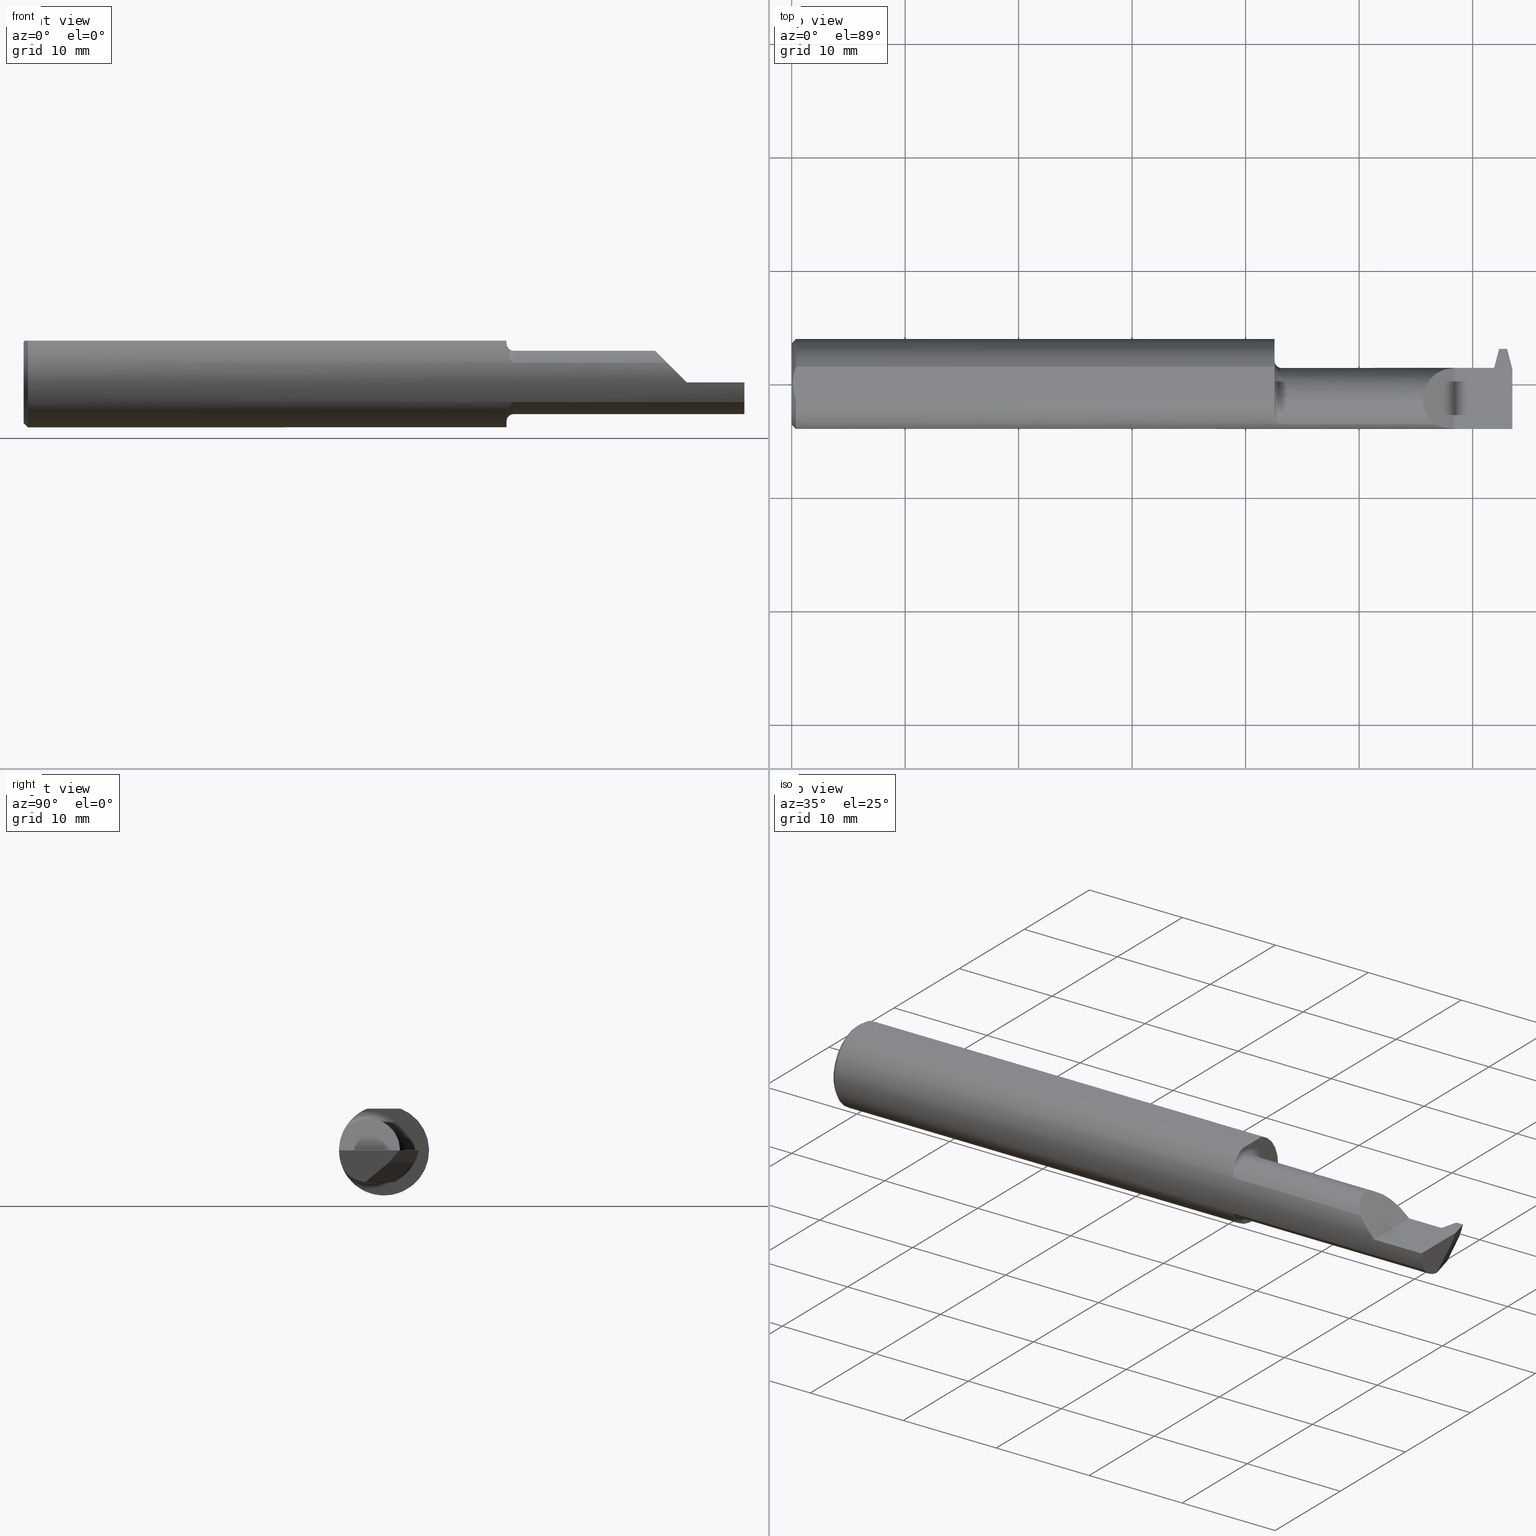
[diagram: canonical four-view strip — front | top / right | iso, engineering-drawing reading convention]
A machine part, canonical four-view strip (front | top / right | iso — engineering-drawing reading convention). The complete STEP part file that produces these views, byte-faithful:
ISO-10303-21;
HEADER;
FILE_DESCRIPTION (( 'STEP AP203' ),
    '1' );
FILE_NAME ('230964-FAT290750-12.STEP',
    '2024-05-22T18:26:54',
    ( '' ),
    ( '' ),
    'SwSTEP 2.0',
    'SolidWorks 2022',
    '' );
FILE_SCHEMA (( 'CONFIG_CONTROL_DESIGN' ));
ENDSEC;

DATA;
#1 = EDGE_CURVE ( 'NONE', #241, #622, #529, .T. ) ;
#2 = CARTESIAN_POINT ( 'NONE',  ( 1.676534083241760120, -0.1085804411166635536, -0.1131817073037792026 ) ) ;
#3 = ORIENTED_EDGE ( 'NONE', *, *, #870, .F. ) ;
#4 = CARTESIAN_POINT ( 'NONE',  ( 2.457659549259122667, -0.05410000000000000225, -0.1100000000000000006 ) ) ;
#5 = CARTESIAN_POINT ( 'NONE',  ( 2.413720460968152626, 0.05589999999999999830, -0.01528912821151733568 ) ) ;
#6 = CC_DESIGN_APPROVAL ( #227, ( #358 ) ) ;
#7 = CARTESIAN_POINT ( 'NONE',  ( 0.01499999999999970281, 0.000000000000000000, -0.1560999999999999888 ) ) ;
#8 = ORIENTED_EDGE ( 'NONE', *, *, #47, .T. ) ;
#9 = AXIS2_PLACEMENT_3D ( 'NONE', #696, #482, #900 ) ;
#10 = DIRECTION ( 'NONE',  ( 0.7071067811865483499, 0.000000000000000000, -0.7071067811865466846 ) ) ;
#11 = FACE_OUTER_BOUND ( 'NONE', #224, .T. ) ;
#12 = SECURITY_CLASSIFICATION ( '', '', #799 ) ;
#13 = EDGE_LOOP ( 'NONE', ( #786, #896, #587 ) ) ;
#14 = EDGE_CURVE ( 'NONE', #412, #760, #161, .T. ) ;
#15 = CARTESIAN_POINT ( 'NONE',  ( 2.443435339008330320, 0.04749983899686319871, -0.04000000000000259598 ) ) ;
#16 = DIRECTION ( 'NONE',  ( 0.000000000000000000, 0.000000000000000000, -1.000000000000000000 ) ) ;
#17 = AXIS2_PLACEMENT_3D ( 'NONE', #623, #677, #893 ) ;
#18 = ORIENTED_EDGE ( 'NONE', *, *, #41, .T. ) ;
#19 = CARTESIAN_POINT ( 'NONE',  ( 2.476310413144170663, 0.1438999999999999724, 0.000000000000000000 ) ) ;
#20 = EDGE_CURVE ( 'NONE', #437, #879, #369, .T. ) ;
#21 = EDGE_LOOP ( 'NONE', ( #105, #372 ) ) ;
#22 = VECTOR ( 'NONE', #170, 39.37007874015748143 ) ;
#23 = DIRECTION ( 'NONE',  ( -1.000000000000000000, -0.000000000000000000, -0.000000000000000000 ) ) ;
#24 = EDGE_CURVE ( 'NONE', #448, #180, #659, .T. ) ;
#25 = EDGE_LOOP ( 'NONE', ( #276, #577, #86 ) ) ;
#26 = VERTEX_POINT ( 'NONE', #874 ) ;
#27 = FACE_OUTER_BOUND ( 'NONE', #345, .T. ) ;
#28 = ADVANCED_FACE ( 'NONE', ( #166 ), #730, .F. ) ;
#29 = DIRECTION ( 'NONE',  ( 0.000000000000000000, 0.000000000000000000, -1.000000000000000000 ) ) ;
#30 = CARTESIAN_POINT ( 'NONE',  ( 2.154900000000000038, 0.1000000000000000056, 0.1450999999999999790 ) ) ;
#31 = AXIS2_PLACEMENT_3D ( 'NONE', #359, #700, #856 ) ;
#32 = ORIENTED_EDGE ( 'NONE', *, *, #335, .T. ) ;
#33 = VECTOR ( 'NONE', #264, 39.37007874015748143 ) ;
#34 = DIRECTION ( 'NONE',  ( 0.000000000000000000, 0.7660444431189791237, 0.6427876096865380307 ) ) ;
#35 = VECTOR ( 'NONE', #56, 39.37007874015748143 ) ;
#36 = VERTEX_POINT ( 'NONE', #592 ) ;
#37 = CARTESIAN_POINT ( 'NONE',  ( 2.497265575455494879, -0.05410000000000006470, -0.1100000000000000006 ) ) ;
#38 = ORIENTED_EDGE ( 'NONE', *, *, #777, .F. ) ;
#39 = ORIENTED_EDGE ( 'NONE', *, *, #717, .T. ) ;
#40 = CYLINDRICAL_SURFACE ( 'NONE', #160, 0.1100000000000000006 ) ;
#41 = EDGE_CURVE ( 'NONE', #180, #176, #98, .T. ) ;
#42 = LINE ( 'NONE', #484, #33 ) ;
#43 = ORIENTED_EDGE ( 'NONE', *, *, #253, .F. ) ;
#44 = DIRECTION ( 'NONE',  ( 0.000000000000000000, -1.000000000000000000, 0.000000000000000000 ) ) ;
#45 = CARTESIAN_POINT ( 'NONE',  ( 2.500000000000000000, 0.01874951628834128567, -0.04000000000000259598 ) ) ;
#46 = VECTOR ( 'NONE', #415, 39.37007874015748143 ) ;
#47 = EDGE_CURVE ( 'NONE', #709, #176, #396, .T. ) ;
#48 = FACE_OUTER_BOUND ( 'NONE', #726, .T. ) ;
#49 = ORIENTED_EDGE ( 'NONE', *, *, #236, .F. ) ;
#50 = CARTESIAN_POINT ( 'NONE',  ( 2.457474761053956236, 0.09975966310312103791, -0.1100000000000000283 ) ) ;
#51 = LINE ( 'NONE', #404, #175 ) ;
#52 = FACE_OUTER_BOUND ( 'NONE', #855, .T. ) ;
#53 = VERTEX_POINT ( 'NONE', #901 ) ;
#54 = CIRCLE ( 'NONE', #129, 0.02499999999999999098 ) ;
#55 = CARTESIAN_POINT ( 'NONE',  ( 1.699999999999999956, -0.05409999999999999531, -0.1350000000000000089 ) ) ;
#56 = DIRECTION ( 'NONE',  ( 1.000000000000000000, 0.000000000000000000, 0.000000000000000000 ) ) ;
#57 = DIRECTION ( 'NONE',  ( 0.2503800040544401639, -0.9681476403781079654, 0.000000000000000000 ) ) ;
#58 = ORIENTED_EDGE ( 'NONE', *, *, #306, .F. ) ;
#59 = VECTOR ( 'NONE', #188, 39.37007874015748143 ) ;
#60 = ORIENTED_EDGE ( 'NONE', *, *, #783, .T. ) ;
#61 = MECHANICAL_CONTEXT ( 'NONE', #593, 'mechanical' ) ;
#62 = ADVANCED_FACE ( 'NONE', ( #48 ), #258, .F. ) ;
#63 = CARTESIAN_POINT ( 'NONE',  ( 0.01499999999999970107, -0.05756040305626777126, 0.1450999999999999790 ) ) ;
#64 = CARTESIAN_POINT ( 'NONE',  ( 1.675000000000000044, -0.05409999999999999531, 0.1100000000000000006 ) ) ;
#65 = ORIENTED_EDGE ( 'NONE', *, *, #497, .F. ) ;
#66 = PERSON_AND_ORGANIZATION ( #81, #165 ) ;
#67 = PLANE ( 'NONE',  #873 ) ;
#68 = CARTESIAN_POINT ( 'NONE',  ( 1.675000000000000044, -0.08381719038816995426, -0.1316886046529207599 ) ) ;
#69 = EDGE_CURVE ( 'NONE', #214, #454, #104, .T. ) ;
#70 = ORIENTED_EDGE ( 'NONE', *, *, #352, .T. ) ;
#71 = CARTESIAN_POINT ( 'NONE',  ( 0.01499999999999970281, 0.000000000000000000, 0.000000000000000000 ) ) ;
#72 = PLANE ( 'NONE',  #889 ) ;
#73 = AXIS2_PLACEMENT_3D ( 'NONE', #489, #356, #498 ) ;
#74 = DIRECTION ( 'NONE',  ( -0.2945363905204533839, 0.000000000000000000, 0.9556402642517649593 ) ) ;
#75 = EDGE_CURVE ( 'NONE', #734, #867, #429, .T. ) ;
#76 = ORIENTED_EDGE ( 'NONE', *, *, #636, .T. ) ;
#77 = VECTOR ( 'NONE', #393, 39.37007874015748854 ) ;
#78 = PERSON_AND_ORGANIZATION ( #81, #165 ) ;
#79 = CARTESIAN_POINT ( 'NONE',  ( 1.675000000000000044, 0.05590000000000001218, -3.918740332231607202E-17 ) ) ;
#80 = VERTEX_POINT ( 'NONE', #532 ) ;
#81 = PERSON ( 'UNSPECIFIED', 'UNSPECIFIED', 'UNSPECIFIED', ('UNSPECIFIED'), ('UNSPECIFIED'), ('UNSPECIFIED') ) ;
#82 = DIRECTION ( 'NONE',  ( 0.000000000000000000, 0.000000000000000000, -1.000000000000000000 ) ) ;
#83 = CARTESIAN_POINT ( 'NONE',  ( 1.675000000000000044, -0.05409999999999999531, 0.000000000000000000 ) ) ;
#84 = AXIS2_PLACEMENT_3D ( 'NONE', #920, #571, #355 ) ;
#85 = TOROIDAL_SURFACE ( 'NONE', #453, 0.1350000000000000089, 0.02500000000000000139 ) ;
#86 = ORIENTED_EDGE ( 'NONE', *, *, #527, .F. ) ;
#87 = CALENDAR_DATE ( 2024, 22, 5 ) ;
#88 = DIRECTION ( 'NONE',  ( -1.000000000000000000, -0.000000000000000000, -0.000000000000000000 ) ) ;
#89 = CONICAL_SURFACE ( 'NONE', #609, 0.1560999999999999888, 0.7853981633974471688 ) ;
#90 = DIRECTION ( 'NONE',  ( 0.1513791767849951841, -0.4583686294251115845, -0.8757753960889982370 ) ) ;
#91 = VECTOR ( 'NONE', #90, 39.37007874015749564 ) ;
#92 = CIRCLE ( 'NONE', #612, 0.1350000000000000089 ) ;
#93 = LINE ( 'NONE', #741, #556 ) ;
#94 = EDGE_CURVE ( 'NONE', #189, #695, #181, .T. ) ;
#95 = CARTESIAN_POINT ( 'NONE',  ( 0.000000000000000000, 0.000000000000000000, 0.000000000000000000 ) ) ;
#96 = ORIENTED_EDGE ( 'NONE', *, *, #777, .T. ) ;
#97 = CARTESIAN_POINT ( 'NONE',  ( 2.500000000000000000, -0.05409999999999999531, 0.000000000000000000 ) ) ;
#98 = LINE ( 'NONE', #376, #457 ) ;
#99 = DATE_AND_TIME ( #871, #522 ) ;
#100 = CARTESIAN_POINT ( 'NONE',  ( 0.008799784310863792772, 0.03878477980766483618, 0.1451000000000000068 ) ) ;
#101 = EDGE_LOOP ( 'NONE', ( #798, #765, #685, #917 ) ) ;
#102 = ADVANCED_FACE ( 'NONE', ( #468 ), #611, .F. ) ;
#103 = COORDINATED_UNIVERSAL_TIME_OFFSET ( 8, 0, .BEHIND. ) ;
#104 = CIRCLE ( 'NONE', #627, 0.1560999999999999888 ) ;
#105 = ORIENTED_EDGE ( 'NONE', *, *, #576, .T. ) ;
#106 = DIRECTION ( 'NONE',  ( -1.000000000000000000, 0.000000000000000000, 0.000000000000000000 ) ) ;
#107 = ORIENTED_EDGE ( 'NONE', *, *, #870, .T. ) ;
#108 = DIRECTION ( 'NONE',  ( 0.2503800040544250094, 0.9681476403781119622, 0.000000000000000000 ) ) ;
#109 = ADVANCED_FACE ( 'NONE', ( #52 ), #891, .T. ) ;
#110 = CARTESIAN_POINT ( 'NONE',  ( 2.498131500062763966, -0.05744828201812182678, -0.1099999999999999867 ) ) ;
#111 = ORIENTED_EDGE ( 'NONE', *, *, #875, .T. ) ;
#112 = CARTESIAN_POINT ( 'NONE',  ( 1.699999999999999956, -0.1404253234750461321, -0.06817579135535316304 ) ) ;
#113 = EDGE_CURVE ( 'NONE', #293, #760, #824, .T. ) ;
#114 = CARTESIAN_POINT ( 'NONE',  ( 2.500000000000000000, 0.01874951628834128567, -0.04000000000000259598 ) ) ;
#115 = AXIS2_PLACEMENT_3D ( 'NONE', #216, #643, #82 ) ;
#116 = DIRECTION ( 'NONE',  ( 0.2503800040544368333, 0.9681476403781088536, -0.000000000000000000 ) ) ;
#117 = LOCAL_TIME ( 11, 26, 54.00000000000000000, #655 ) ;
#118 = ORIENTED_EDGE ( 'NONE', *, *, #662, .F. ) ;
#119 = DIRECTION ( 'NONE',  ( 0.03504448777032400514, -0.7066724431718360844, -0.7066724431718443000 ) ) ;
#120 = CARTESIAN_POINT ( 'NONE',  ( 1.692237837478428597, -0.1379520625079433405, 0.07306979920448572474 ) ) ;
#121 = VECTOR ( 'NONE', #819, 39.37007874015748143 ) ;
#122 = LINE ( 'NONE', #552, #610 ) ;
#123 = ORIENTED_EDGE ( 'NONE', *, *, #409, .T. ) ;
#124 = CARTESIAN_POINT ( 'NONE',  ( 1.675000000000000044, -0.05409999999999997450, 0.1350000000000000089 ) ) ;
#125 = CARTESIAN_POINT ( 'NONE',  ( 2.443435339008330320, -0.03363394074619028423, -0.1080793246584172140 ) ) ;
#126 = CYLINDRICAL_SURFACE ( 'NONE', #518, 0.1100000000000000006 ) ;
#127 = AXIS2_PLACEMENT_3D ( 'NONE', #97, #584, #232 ) ;
#128 = ORIENTED_EDGE ( 'NONE', *, *, #156, .T. ) ;
#129 = AXIS2_PLACEMENT_3D ( 'NONE', #299, #746, #735 ) ;
#130 = CARTESIAN_POINT ( 'NONE',  ( 2.455534950874878497, 0.01086281516284811482, -0.1100000000000000283 ) ) ;
#131 = CARTESIAN_POINT ( 'NONE',  ( 2.189999999999999947, -0.05409999999999999531, 0.1100000000000000006 ) ) ;
#132 = DIRECTION ( 'NONE',  ( 0.9277270166603276413, 0.2399265199903804213, -0.2859332921571633990 ) ) ;
#133 = EDGE_CURVE ( 'NONE', #673, #448, #542, .T. ) ;
#134 = ORIENTED_EDGE ( 'NONE', *, *, #445, .T. ) ;
#135 = CARTESIAN_POINT ( 'NONE',  ( 0.003999999999999595893, 1.377970445471898428E-17, 0.1450999999999999790 ) ) ;
#136 = AXIS2_PLACEMENT_3D ( 'NONE', #684, #268, #194 ) ;
#137 = LINE ( 'NONE', #64, #492 ) ;
#138 = AXIS2_PLACEMENT_3D ( 'NONE', #473, #325, #830 ) ;
#139 = ORIENTED_EDGE ( 'NONE', *, *, #313, .T. ) ;
#140 = CARTESIAN_POINT ( 'NONE',  ( 2.500000000000000000, 0.03812689546841423888, -0.1100000000000000283 ) ) ;
#141 = LINE ( 'NONE', #851, #290 ) ;
#142 = EDGE_CURVE ( 'NONE', #902, #265, #122, .T. ) ;
#143 = CARTESIAN_POINT ( 'NONE',  ( 1.699999999999999956, -0.05409999999999999531, 0.000000000000000000 ) ) ;
#144 = ORIENTED_EDGE ( 'NONE', *, *, #662, .T. ) ;
#145 = DIRECTION ( 'NONE',  ( -1.000000000000000000, -0.000000000000000000, -0.000000000000000000 ) ) ;
#146 = EDGE_CURVE ( 'NONE', #771, #180, #42, .T. ) ;
#147 = CARTESIAN_POINT ( 'NONE',  ( 2.300000000000000266, -0.1560999999999999888, -3.918740332231607202E-17 ) ) ;
#148 = ORIENTED_EDGE ( 'NONE', *, *, #580, .F. ) ;
#149 = DIRECTION ( 'NONE',  ( 1.000000000000000000, -0.000000000000000000, -0.000000000000000000 ) ) ;
#150 = CARTESIAN_POINT ( 'NONE',  ( 2.204937869678032847, -0.1191917229287704216, 0.09506213032196700330 ) ) ;
#151 = TOROIDAL_SURFACE ( 'NONE', #138, 0.1350000000000000089, 0.02500000000000000139 ) ;
#152 = ORIENTED_EDGE ( 'NONE', *, *, #651, .T. ) ;
#153 = ADVANCED_FACE ( 'NONE', ( #548 ), #151, .F. ) ;
#154 = DIRECTION ( 'NONE',  ( -1.000000000000000000, -0.000000000000000000, -0.000000000000000000 ) ) ;
#155 = EDGE_LOOP ( 'NONE', ( #373, #844, #43, #58 ) ) ;
#156 = EDGE_CURVE ( 'NONE', #523, #711, #764, .T. ) ;
#157 = APPROVAL_DATE_TIME ( #442, #227 ) ;
#158 = CARTESIAN_POINT ( 'NONE',  ( 0.000000000000000000, 0.000000000000000000, -0.1411000000000003085 ) ) ;
#159 = CIRCLE ( 'NONE', #467, 0.1411000000000003085 ) ;
#160 = AXIS2_PLACEMENT_3D ( 'NONE', #476, #323, #186 ) ;
#161 = LINE ( 'NONE', #234, #91 ) ;
#162 = PERSON_AND_ORGANIZATION ( #81, #165 ) ;
#163 = TOROIDAL_SURFACE ( 'NONE', #852, 0.1350000000000000089, 0.02500000000000000139 ) ;
#164 = CYLINDRICAL_SURFACE ( 'NONE', #499, 0.1560999999999999888 ) ;
#165 = ORGANIZATION ( 'UNSPECIFIED', 'UNSPECIFIED', '' ) ;
#166 = FACE_OUTER_BOUND ( 'NONE', #892, .T. ) ;
#167 = CALENDAR_DATE ( 2024, 22, 5 ) ;
#168 = VERTEX_POINT ( 'NONE', #770 ) ;
#169 = DIRECTION ( 'NONE',  ( -0.000000000000000000, 0.000000000000000000, -1.000000000000000000 ) ) ;
#170 = DIRECTION ( 'NONE',  ( -1.000000000000000000, -0.000000000000000000, -0.000000000000000000 ) ) ;
#171 = CC_DESIGN_APPROVAL ( #745, ( #12 ) ) ;
#172 = PERSON_AND_ORGANIZATION ( #81, #165 ) ;
#173 = CARTESIAN_POINT ( 'NONE',  ( 0.01157928343552837129, 0.04828364633877424428, 0.1451000000000000068 ) ) ;
#174 = ADVANCED_FACE ( 'NONE', ( #411 ), #126, .T. ) ;
#175 = VECTOR ( 'NONE', #338, 39.37007874015748143 ) ;
#176 = VERTEX_POINT ( 'NONE', #759 ) ;
#177 = PERSON_AND_ORGANIZATION_ROLE ( 'design_supplier' ) ;
#178 = ORIENTED_EDGE ( 'NONE', *, *, #317, .T. ) ;
#179 = PLANE ( 'NONE',  #589 ) ;
#180 = VERTEX_POINT ( 'NONE', #693 ) ;
#181 = CIRCLE ( 'NONE', #694, 0.1560999999999999888 ) ;
#182 = EDGE_CURVE ( 'NONE', #632, #309, #386, .T. ) ;
#183 = CARTESIAN_POINT ( 'NONE',  ( 1.675000000000000044, 0.05756040305626777126, 0.1450999999999999790 ) ) ;
#184 = DIRECTION ( 'NONE',  ( -0.9474803064293664256, -0.2450350680735401965, 0.2055210070593990468 ) ) ;
#185 = ORIENTED_EDGE ( 'NONE', *, *, #306, .T. ) ;
#186 = DIRECTION ( 'NONE',  ( 0.000000000000000000, 0.000000000000000000, 1.000000000000000000 ) ) ;
#187 = CARTESIAN_POINT ( 'NONE',  ( 1.693392435750742608, -0.1386997847853259358, 0.07163397791871660425 ) ) ;
#188 = DIRECTION ( 'NONE',  ( -1.000000000000000000, 2.247810050981537545E-15, 0.000000000000000000 ) ) ;
#189 = VERTEX_POINT ( 'NONE', #747 ) ;
#190 = EDGE_CURVE ( 'NONE', #673, #637, #703, .T. ) ;
#191 = DIRECTION ( 'NONE',  ( 1.000000000000000000, 0.000000000000000000, 0.000000000000000000 ) ) ;
#192 = CARTESIAN_POINT ( 'NONE',  ( 0.003999999999996986001, -0.009882491626910055310, 0.1450999999999999790 ) ) ;
#193 = VECTOR ( 'NONE', #650, 39.37007874015748143 ) ;
#194 = DIRECTION ( 'NONE',  ( 0.000000000000000000, -0.3255681544571569774, -0.9455185755993166241 ) ) ;
#195 = ORIENTED_EDGE ( 'NONE', *, *, #866, .T. ) ;
#196 = FACE_OUTER_BOUND ( 'NONE', #25, .T. ) ;
#197 = CARTESIAN_POINT ( 'NONE',  ( 2.450468519194640038, 0.01720710617663996633, -0.08823817868278836796 ) ) ;
#198 = CC_DESIGN_PERSON_AND_ORGANIZATION_ASSIGNMENT ( #310, #307, ( #358 ) ) ;
#199 = DIRECTION ( 'NONE',  ( -1.000000000000000000, -0.000000000000000000, -0.000000000000000000 ) ) ;
#200 = ORIENTED_EDGE ( 'NONE', *, *, #146, .T. ) ;
#201 = CARTESIAN_POINT ( 'NONE',  ( 2.433435339008330534, 0.05590000000000006075, 3.001376171470361759E-19 ) ) ;
#202 = LINE ( 'NONE', #79, #275 ) ;
#203 = CARTESIAN_POINT ( 'NONE',  ( 0.01499999999999970281, 0.000000000000000000, 0.000000000000000000 ) ) ;
#204 = ORIENTED_EDGE ( 'NONE', *, *, #133, .T. ) ;
#205 = AXIS2_PLACEMENT_3D ( 'NONE', #55, #44, #554 ) ;
#206 = FACE_OUTER_BOUND ( 'NONE', #458, .T. ) ;
#207 = LINE ( 'NONE', #488, #399 ) ;
#208 = CARTESIAN_POINT ( 'NONE',  ( 1.693429166325216340, -0.1387203257045916405, -0.07159402063229236557 ) ) ;
#209 = EDGE_LOOP ( 'NONE', ( #383, #387, #882, #859, #744 ) ) ;
#210 =( GEOMETRIC_REPRESENTATION_CONTEXT ( 3 ) GLOBAL_UNCERTAINTY_ASSIGNED_CONTEXT ( ( #416 ) ) GLOBAL_UNIT_ASSIGNED_CONTEXT ( ( #574, #294, #350 ) ) REPRESENTATION_CONTEXT ( 'NONE', 'WORKASPACE' ) );
#211 = PERSON_AND_ORGANIZATION_ROLE ( 'design_owner' ) ;
#212 = DIRECTION ( 'NONE',  ( -0.03268736195502728453, 0.9994656254061071721, -1.032248020528189877E-16 ) ) ;
#213 = CARTESIAN_POINT ( 'NONE',  ( 2.276279741160605941, -0.1561000000000000165, 0.02372025883939345506 ) ) ;
#214 = VERTEX_POINT ( 'NONE', #7 ) ;
#215 = EDGE_CURVE ( 'NONE', #695, #314, #853, .T. ) ;
#216 = CARTESIAN_POINT ( 'NONE',  ( 2.500000000000000000, 0.000000000000000000, 0.000000000000000000 ) ) ;
#217 = CARTESIAN_POINT ( 'NONE',  ( 1.675000000000000044, 0.000000000000000000, 0.000000000000000000 ) ) ;
#218 = CARTESIAN_POINT ( 'NONE',  ( 1.699999999999999956, -0.1404253234750461321, -0.06817579135535316304 ) ) ;
#219 = ORIENTED_EDGE ( 'NONE', *, *, #580, .T. ) ;
#220 = CARTESIAN_POINT ( 'NONE',  ( 2.447935725133934870, 0.03387289330930214754, -0.06603612680033670024 ) ) ;
#221 = VECTOR ( 'NONE', #119, 39.37007874015748854 ) ;
#222 = DIRECTION ( 'NONE',  ( 0.000000000000000000, 0.000000000000000000, -1.000000000000000000 ) ) ;
#223 = FACE_OUTER_BOUND ( 'NONE', #583, .T. ) ;
#224 = EDGE_LOOP ( 'NONE', ( #494, #511, #490, #754, #245, #600 ) ) ;
#225 = LINE ( 'NONE', #140, #193 ) ;
#226 = LINE ( 'NONE', #796, #749 ) ;
#227 = APPROVAL ( #235, 'UNSPECIFIED' ) ;
#228 = ORIENTED_EDGE ( 'NONE', *, *, #215, .T. ) ;
#229 = DIRECTION ( 'NONE',  ( 0.000000000000000000, 0.000000000000000000, 1.000000000000000000 ) ) ;
#230 = EDGE_CURVE ( 'NONE', #80, #704, #441, .T. ) ;
#231 = ORIENTED_EDGE ( 'NONE', *, *, #576, .F. ) ;
#232 = DIRECTION ( 'NONE',  ( 0.000000000000000000, 0.000000000000000000, 1.000000000000000000 ) ) ;
#233 = AXIS2_PLACEMENT_3D ( 'NONE', #502, #510, #644 ) ;
#234 = CARTESIAN_POINT ( 'NONE',  ( 2.443435339008330320, 0.04749983899686321259, -0.04000000000000259598 ) ) ;
#235 = APPROVAL_STATUS ( 'not_yet_approved' ) ;
#236 = EDGE_CURVE ( 'NONE', #265, #36, #582, .T. ) ;
#237 = LINE ( 'NONE', #596, #797 ) ;
#238 = APPROVAL_PERSON_ORGANIZATION ( #162, #624, #738 ) ;
#239 = ORIENTED_EDGE ( 'NONE', *, *, #182, .T. ) ;
#240 = DIRECTION ( 'NONE',  ( 0.000000000000000000, 0.000000000000000000, 1.000000000000000000 ) ) ;
#241 = VERTEX_POINT ( 'NONE', #421 ) ;
#242 = CARTESIAN_POINT ( 'NONE',  ( 2.300000000000000266, 0.05590000000000006075, -3.918740332231607202E-17 ) ) ;
#243 = AXIS2_PLACEMENT_3D ( 'NONE', #772, #686, #629 ) ;
#244 = ADVANCED_FACE ( 'NONE', ( #11 ), #780, .T. ) ;
#245 = ORIENTED_EDGE ( 'NONE', *, *, #750, .T. ) ;
#246 = ORIENTED_EDGE ( 'NONE', *, *, #485, .F. ) ;
#247 = DIRECTION ( 'NONE',  ( 0.000000000000000000, 0.000000000000000000, -1.000000000000000000 ) ) ;
#248 = VECTOR ( 'NONE', #406, 39.37007874015748143 ) ;
#249 = ORIENTED_EDGE ( 'NONE', *, *, #815, .F. ) ;
#250 = DIRECTION ( 'NONE',  ( 0.000000000000000000, -0.7071067811865516806, 0.7071067811865434649 ) ) ;
#251 = LINE ( 'NONE', #620, #46 ) ;
#252 = CARTESIAN_POINT ( 'NONE',  ( 1.675000000000000044, -0.05409999999999999531, 0.000000000000000000 ) ) ;
#253 = EDGE_CURVE ( 'NONE', #189, #739, #757, .T. ) ;
#254 = ORIENTED_EDGE ( 'NONE', *, *, #794, .F. ) ;
#255 = FACE_OUTER_BOUND ( 'NONE', #101, .T. ) ;
#256 = CARTESIAN_POINT ( 'NONE',  ( 2.416931239432511092, 0.05590000000000005381, 0.000000000000000000 ) ) ;
#257 = AXIS2_PLACEMENT_3D ( 'NONE', #217, #562, #222 ) ;
#258 = PLANE ( 'NONE',  #836 ) ;
#259 =( BOUNDED_CURVE ( )  B_SPLINE_CURVE ( 3, ( #555, #758, #774, #131 ),
 .UNSPECIFIED., .F., .F. ) 
 B_SPLINE_CURVE_WITH_KNOTS ( ( 4, 4 ),
 ( 4.712388980384687009, 6.283185307179586232 ),
 .UNSPECIFIED. ) 
 CURVE ( )  GEOMETRIC_REPRESENTATION_ITEM ( )  RATIONAL_B_SPLINE_CURVE ( ( 1.000000000000000000, 0.8047378541243643824, 0.8047378541243643824, 1.000000000000000000 ) ) 
 REPRESENTATION_ITEM ( '' )  );
#260 = ORIENTED_EDGE ( 'NONE', *, *, #750, .F. ) ;
#261 = CARTESIAN_POINT ( 'NONE',  ( 1.699999999999999956, -0.05409999999999999531, 0.000000000000000000 ) ) ;
#262 = ADVANCED_FACE ( 'NONE', ( #223 ), #348, .T. ) ;
#263 = CARTESIAN_POINT ( 'NONE',  ( 1.675408103372244994, -0.09658968664339810661, 0.1228705714355937950 ) ) ;
#264 = DIRECTION ( 'NONE',  ( 1.000000000000000000, 4.268512490100399076E-16, -0.000000000000000000 ) ) ;
#265 = VERTEX_POINT ( 'NONE', #272 ) ;
#266 = DIRECTION ( 'NONE',  ( 1.000000000000000000, 0.000000000000000000, 0.000000000000000000 ) ) ;
#267 = DIRECTION ( 'NONE',  ( 1.000000000000000000, 0.000000000000000000, 0.000000000000000000 ) ) ;
#268 = DIRECTION ( 'NONE',  ( -2.125346157621891646E-15, -0.9455185755993167351, 0.3255681544571570329 ) ) ;
#269 = ORIENTED_EDGE ( 'NONE', *, *, #497, .T. ) ;
#270 = CARTESIAN_POINT ( 'NONE',  ( 2.055000000000000160, -0.1404253234750461321, -0.06817579135535316304 ) ) ;
#271 = CARTESIAN_POINT ( 'NONE',  ( 2.500000000000000000, -0.06412741814737722701, -0.1095420051181173471 ) ) ;
#272 = CARTESIAN_POINT ( 'NONE',  ( 2.300000000000000266, -0.1560999999999999888, -3.918740332231607202E-17 ) ) ;
#273 = EDGE_CURVE ( 'NONE', #711, #391, #558, .T. ) ;
#274 = B_SPLINE_CURVE_WITH_KNOTS ( 'NONE', 3,
 ( #135, #192, #762, #540, #828, #63 ),
 .UNSPECIFIED., .F., .F.,
 ( 4, 2, 4 ),
 ( 0.004431269906162800011, 0.005173847132308577804, 0.005916424358454355596 ),
 .UNSPECIFIED. ) ;
#275 = VECTOR ( 'NONE', #283, 39.37007874015748143 ) ;
#276 = ORIENTED_EDGE ( 'NONE', *, *, #880, .T. ) ;
#277 = APPLICATION_PROTOCOL_DEFINITION ( 'international standard', 'config_control_design', 1994, #593 ) ;
#278 = FACE_OUTER_BOUND ( 'NONE', #357, .T. ) ;
#279 = DIRECTION ( 'NONE',  ( -1.000000000000000000, -0.000000000000000000, -0.000000000000000000 ) ) ;
#280 = EDGE_LOOP ( 'NONE', ( #8, #486, #669, #628, #469, #573, #139, #148 ) ) ;
#281 = LOCAL_TIME ( 11, 26, 54.00000000000000000, #370 ) ;
#282 = CARTESIAN_POINT ( 'NONE',  ( 2.453019872896905262, 0.01270421248208681436, -0.09423690401342106615 ) ) ;
#283 = DIRECTION ( 'NONE',  ( 1.000000000000000000, 0.000000000000000000, 0.000000000000000000 ) ) ;
#284 = CARTESIAN_POINT ( 'NONE',  ( 2.433435339008330534, 0.04749983899686319871, -0.04000000000000259598 ) ) ;
#285 = ORIENTED_EDGE ( 'NONE', *, *, #75, .F. ) ;
#286 = CARTESIAN_POINT ( 'NONE',  ( 2.457659549259122667, -0.05410000000000000225, -0.1100000000000000006 ) ) ;
#287 = DIRECTION ( 'NONE',  ( 0.000000000000000000, 0.000000000000000000, -1.000000000000000000 ) ) ;
#288 = ORIENTED_EDGE ( 'NONE', *, *, #24, .F. ) ;
#289 = LINE ( 'NONE', #15, #545 ) ;
#290 = VECTOR ( 'NONE', #212, 39.37007874015748854 ) ;
#291 = VECTOR ( 'NONE', #191, 39.37007874015748143 ) ;
#292 = CARTESIAN_POINT ( 'NONE',  ( 2.189999999999999947, -0.05409999999999999531, 0.1100000000000000006 ) ) ;
#293 = VERTEX_POINT ( 'NONE', #775 ) ;
#294 =( NAMED_UNIT ( * ) PLANE_ANGLE_UNIT ( ) SI_UNIT ( $, .RADIAN. ) );
#295 = PLANE ( 'NONE',  #233 ) ;
#296 = EDGE_CURVE ( 'NONE', #53, #704, #137, .T. ) ;
#297 = AXIS2_PLACEMENT_3D ( 'NONE', #95, #661, #29 ) ;
#298 = ORIENTED_EDGE ( 'NONE', *, *, #324, .T. ) ;
#299 = CARTESIAN_POINT ( 'NONE',  ( 1.699999999999999956, -0.05409999999999997450, 0.1350000000000000089 ) ) ;
#300 = LOCAL_TIME ( 11, 26, 54.00000000000000000, #103 ) ;
#301 = DIRECTION ( 'NONE',  ( -0.1571540165094705566, 0.2029672248372562937, 0.9664920696709329295 ) ) ;
#302 = CALENDAR_DATE ( 2024, 22, 5 ) ;
#303 = ORIENTED_EDGE ( 'NONE', *, *, #94, .T. ) ;
#304 = PLANE ( 'NONE',  #714 ) ;
#305 = CARTESIAN_POINT ( 'NONE',  ( 2.436931239432511553, 0.05590000000000006075, -6.842741670802521495E-19 ) ) ;
#306 = EDGE_CURVE ( 'NONE', #867, #189, #92, .T. ) ;
#307 = PERSON_AND_ORGANIZATION_ROLE ( 'creator' ) ;
#308 = DIRECTION ( 'NONE',  ( -0.1200238624775765567, -0.3232146245633320536, -0.9386834284807356044 ) ) ;
#309 = VERTEX_POINT ( 'NONE', #271 ) ;
#310 = PERSON_AND_ORGANIZATION ( #81, #165 ) ;
#311 = ORIENTED_EDGE ( 'NONE', *, *, #142, .T. ) ;
#312 = DIRECTION ( 'NONE',  ( -0.7071067811865461294, 0.000000000000000000, 0.7071067811865487940 ) ) ;
#313 = EDGE_CURVE ( 'NONE', #902, #808, #251, .T. ) ;
#314 = VERTEX_POINT ( 'NONE', #768 ) ;
#315 = APPROVAL_ROLE ( '' ) ;
#316 = PLANE ( 'NONE',  #603 ) ;
#317 = EDGE_CURVE ( 'NONE', #265, #649, #207, .T. ) ;
#318 = CC_DESIGN_PERSON_AND_ORGANIZATION_ASSIGNMENT ( #721, #594, ( #12 ) ) ;
#319 = VECTOR ( 'NONE', #814, 39.37007874015748143 ) ;
#320 = VECTOR ( 'NONE', #108, 39.37007874015748854 ) ;
#321 = ORIENTED_EDGE ( 'NONE', *, *, #773, .F. ) ;
#322 = ORIENTED_EDGE ( 'NONE', *, *, #641, .T. ) ;
#323 = DIRECTION ( 'NONE',  ( -1.000000000000000000, -0.000000000000000000, -0.000000000000000000 ) ) ;
#324 = EDGE_CURVE ( 'NONE', #649, #53, #259, .T. ) ;
#325 = DIRECTION ( 'NONE',  ( 1.000000000000000000, 0.000000000000000000, 0.000000000000000000 ) ) ;
#326 = ORIENTED_EDGE ( 'NONE', *, *, #215, .F. ) ;
#327 = LINE ( 'NONE', #201, #605 ) ;
#328 = CARTESIAN_POINT ( 'NONE',  ( 1.675000000000000044, -0.08381719038816995426, 0.1316886046529207599 ) ) ;
#329 = DIRECTION ( 'NONE',  ( 0.000000000000000000, 0.000000000000000000, -1.000000000000000000 ) ) ;
#330 = EDGE_LOOP ( 'NONE', ( #144, #722, #888, #111, #38 ) ) ;
#331 = ADVANCED_FACE ( 'NONE', ( #823 ), #472, .T. ) ;
#332 = FACE_OUTER_BOUND ( 'NONE', #672, .T. ) ;
#333 = CARTESIAN_POINT ( 'NONE',  ( 2.447935725133934870, 0.03387289330930214754, -0.06603612680033670024 ) ) ;
#334 = CARTESIAN_POINT ( 'NONE',  ( 2.433435339008330534, 0.04749983899686319871, -0.04000000000000259598 ) ) ;
#335 = EDGE_CURVE ( 'NONE', #622, #336, #274, .T. ) ;
#336 = VERTEX_POINT ( 'NONE', #347 ) ;
#337 = CARTESIAN_POINT ( 'NONE',  ( 2.399999999999999911, 0.1481268954684129557, 0.000000000000000000 ) ) ;
#338 = DIRECTION ( 'NONE',  ( -1.000000000000000000, -0.000000000000000000, -0.000000000000000000 ) ) ;
#339 = DIRECTION ( 'NONE',  ( -1.000000000000000000, -0.000000000000000000, -0.000000000000000000 ) ) ;
#340 = ORIENTED_EDGE ( 'NONE', *, *, #586, .F. ) ;
#341 = FACE_OUTER_BOUND ( 'NONE', #13, .T. ) ;
#342 = DIRECTION ( 'NONE',  ( 0.2013133534504512878, 0.2013133534504513711, 0.9586166425871539554 ) ) ;
#343 = EDGE_CURVE ( 'NONE', #690, #168, #528, .T. ) ;
#344 = DIRECTION ( 'NONE',  ( -0.9277270166603311941, 0.2399265199903748702, -0.2859332921571568487 ) ) ;
#345 = EDGE_LOOP ( 'NONE', ( #195, #886, #825, #204 ) ) ;
#346 = CC_DESIGN_SECURITY_CLASSIFICATION ( #12, ( #640 ) ) ;
#347 = CARTESIAN_POINT ( 'NONE',  ( 0.01499999999999970107, -0.05756040305626777126, 0.1450999999999999790 ) ) ;
#348 = PLANE ( 'NONE',  #73 ) ;
#349 = ORIENTED_EDGE ( 'NONE', *, *, #273, .T. ) ;
#350 =( NAMED_UNIT ( * ) SI_UNIT ( $, .STERADIAN. ) SOLID_ANGLE_UNIT ( ) );
#351 = CARTESIAN_POINT ( 'NONE',  ( 0.01499999999999970281, 0.000000000000000000, -0.1560999999999999888 ) ) ;
#352 = EDGE_CURVE ( 'NONE', #391, #309, #692, .T. ) ;
#353 = CARTESIAN_POINT ( 'NONE',  ( 1.681403200130684006, -0.1234706953780183025, -0.09581413073336603192 ) ) ;
#354 = EDGE_LOOP ( 'NONE', ( #321, #463, #792, #200, #288, #418 ) ) ;
#355 = DIRECTION ( 'NONE',  ( 0.2503800040544369443, 0.9681476403781090756, 0.000000000000000000 ) ) ;
#356 = DIRECTION ( 'NONE',  ( 1.000000000000000000, 0.000000000000000000, 0.000000000000000000 ) ) ;
#357 = EDGE_LOOP ( 'NONE', ( #514, #118, #239, #340, #450, #832 ) ) ;
#358 = PRODUCT_DEFINITION ( 'UNKNOWN', '', #640, #841 ) ;
#359 = CARTESIAN_POINT ( 'NONE',  ( 2.500000000000000000, 0.1107574376735033922, -0.1100000000000000283 ) ) ;
#360 = DIRECTION ( 'NONE',  ( -0.9786527043120508695, 0.000000000000000000, 0.2055210070593990190 ) ) ;
#361 =( BOUNDED_CURVE ( )  B_SPLINE_CURVE ( 3, ( #713, #638, #5, #652 ),
 .UNSPECIFIED., .F., .F. ) 
 B_SPLINE_CURVE_WITH_KNOTS ( ( 4, 4 ),
 ( 1.156804228221842479, 1.570796326794896780 ),
 .UNSPECIFIED. ) 
 CURVE ( )  GEOMETRIC_REPRESENTATION_ITEM ( )  RATIONAL_B_SPLINE_CURVE ( ( 1.000000000000000000, 0.9857684695413673204, 0.9857684695413673204, 1.000000000000000000 ) ) 
 REPRESENTATION_ITEM ( '' )  );
#362 = ORIENTED_EDGE ( 'NONE', *, *, #400, .F. ) ;
#363 = CARTESIAN_POINT ( 'NONE',  ( 2.500000000000000000, -0.1561000000000000165, -3.918740332231607202E-17 ) ) ;
#364 = CIRCLE ( 'NONE', #257, 0.1560999999999999888 ) ;
#365 = AXIS2_PLACEMENT_3D ( 'NONE', #337, #250, #691 ) ;
#366 = ORIENTED_EDGE ( 'NONE', *, *, #352, .F. ) ;
#367 = ADVANCED_BREP_SHAPE_REPRESENTATION ( '230964-FAT290750-12', ( #829, #564 ), #210 ) ;
#368 = CARTESIAN_POINT ( 'NONE',  ( 2.473414078536811278, 0.03812689546841420418, -0.1100000000000000422 ) ) ;
#369 = LINE ( 'NONE', #806, #22 ) ;
#370 = COORDINATED_UNIVERSAL_TIME_OFFSET ( 8, 0, .BEHIND. ) ;
#371 = CARTESIAN_POINT ( 'NONE',  ( 0.01499999999999970281, 0.000000000000000000, 0.000000000000000000 ) ) ;
#372 = ORIENTED_EDGE ( 'NONE', *, *, #395, .F. ) ;
#373 = ORIENTED_EDGE ( 'NONE', *, *, #783, .F. ) ;
#374 = VECTOR ( 'NONE', #10, 39.37007874015748143 ) ;
#375 = DIRECTION ( 'NONE',  ( -0.7071067811865489050, 0.000000000000000000, -0.7071067811865462405 ) ) ;
#376 = CARTESIAN_POINT ( 'NONE',  ( 2.459689586855829280, 0.1438999999999999724, 0.000000000000000000 ) ) ;
#377 = APPROVAL_DATE_TIME ( #99, #745 ) ;
#378 = CIRCLE ( 'NONE', #115, 0.1560999999999999888 ) ;
#379 = ORIENTED_EDGE ( 'NONE', *, *, #69, .T. ) ;
#380 = DIRECTION ( 'NONE',  ( 1.000000000000000000, 0.000000000000000000, 0.000000000000000000 ) ) ;
#381 = VECTOR ( 'NONE', #385, 39.37007874015748143 ) ;
#382 = ORIENTED_EDGE ( 'NONE', *, *, #880, .F. ) ;
#383 = ORIENTED_EDGE ( 'NONE', *, *, #1, .F. ) ;
#384 = CARTESIAN_POINT ( 'NONE',  ( 2.433435339008330534, 0.04749983899686319871, -0.04000000000000259598 ) ) ;
#385 = DIRECTION ( 'NONE',  ( 0.7071067811865483499, 8.659560562354922997E-17, 0.7071067811865466846 ) ) ;
#386 =( BOUNDED_CURVE ( )  B_SPLINE_CURVE ( 3, ( #606, #110, #675, #536 ),
 .UNSPECIFIED., .F., .F. ) 
 B_SPLINE_CURVE_WITH_KNOTS ( ( 4, 4 ),
 ( 0.6981317007977293487, 0.7894167739939454975 ),
 .UNSPECIFIED. ) 
 CURVE ( )  GEOMETRIC_REPRESENTATION_ITEM ( )  RATIONAL_B_SPLINE_CURVE ( ( 1.000000000000000000, 0.9993057068285278177, 0.9993057068285278177, 1.000000000000000000 ) ) 
 REPRESENTATION_ITEM ( '' )  );
#387 = ORIENTED_EDGE ( 'NONE', *, *, #843, .F. ) ;
#388 = EDGE_CURVE ( 'NONE', #454, #695, #846, .T. ) ;
#389 = DIRECTION ( 'NONE',  ( -0.2503800040544313932, 0.9681476403781102968, -1.003538607613966156E-16 ) ) ;
#390 = DIRECTION ( 'NONE',  ( 1.000000000000000000, 0.000000000000000000, 0.000000000000000000 ) ) ;
#391 = VERTEX_POINT ( 'NONE', #45 ) ;
#392 = LINE ( 'NONE', #898, #559 ) ;
#393 = DIRECTION ( 'NONE',  ( 0.000000000000000000, -0.7660444431189791237, -0.6427876096865379196 ) ) ;
#394 = AXIS2_PLACEMENT_3D ( 'NONE', #464, #864, #433 ) ;
#395 = EDGE_CURVE ( 'NONE', #879, #771, #615, .T. ) ;
#396 = LINE ( 'NONE', #401, #59 ) ;
#397 = EDGE_LOOP ( 'NONE', ( #246, #506, #440, #821 ) ) ;
#398 = DIRECTION ( 'NONE',  ( -1.000000000000000000, -0.000000000000000000, -0.000000000000000000 ) ) ;
#399 = VECTOR ( 'NONE', #683, 39.37007874015748143 ) ;
#400 = EDGE_CURVE ( 'NONE', #412, #607, #481, .T. ) ;
#401 = CARTESIAN_POINT ( 'NONE',  ( 2.300000000000000266, 0.1219000000000004108, -3.918740332231607202E-17 ) ) ;
#402 = ORIENTED_EDGE ( 'NONE', *, *, #1, .T. ) ;
#403 = LINE ( 'NONE', #766, #291 ) ;
#404 = CARTESIAN_POINT ( 'NONE',  ( 2.500000000000000000, -0.05756040305626777126, 0.1450999999999999790 ) ) ;
#405 = CIRCLE ( 'NONE', #451, 0.1350000000000000089 ) ;
#406 = DIRECTION ( 'NONE',  ( -0.2503800040544250649, -0.9681476403781119622, 1.003538607613969360E-16 ) ) ;
#407 = ORIENTED_EDGE ( 'NONE', *, *, #557, .T. ) ;
#408 = DIRECTION ( 'NONE',  ( -0.000000000000000000, 0.2055210070593990190, 0.9786527043120508695 ) ) ;
#409 = EDGE_CURVE ( 'NONE', #314, #336, #51, .T. ) ;
#410 = CARTESIAN_POINT ( 'NONE',  ( 1.681414747612839156, -0.1234875550582431591, 0.09578598333246278462 ) ) ;
#411 = FACE_OUTER_BOUND ( 'NONE', #397, .T. ) ;
#412 = VERTEX_POINT ( 'NONE', #625 ) ;
#413 =( LENGTH_UNIT ( ) NAMED_UNIT ( * ) SI_UNIT ( $, .METRE. ) );
#414 = CLOSED_SHELL ( 'NONE', ( #820, #153, #914, #804, #174, #617, #331, #459, #897, #465, #62, #533, #800, #707, #471, #666, #595, #28, #658, #262, #702, #102, #509, #109, #244, #743, #725 ) ) ;
#415 = DIRECTION ( 'NONE',  ( -0.000000000000000000, 1.000000000000000000, -0.000000000000000000 ) ) ;
#416 = UNCERTAINTY_MEASURE_WITH_UNIT (LENGTH_MEASURE( 1.000000000000000082E-05 ), #574, 'distance_accuracy_value', 'NONE');
#417 = DIRECTION ( 'NONE',  ( 0.000000000000000000, -0.7660444431189791237, -0.6427876096865379196 ) ) ;
#418 = ORIENTED_EDGE ( 'NONE', *, *, #133, .F. ) ;
#419 = FACE_OUTER_BOUND ( 'NONE', #330, .T. ) ;
#420 = CARTESIAN_POINT ( 'NONE',  ( 0.01499999999999970281, 0.05756040305626777126, 0.1450999999999999790 ) ) ;
#421 = CARTESIAN_POINT ( 'NONE',  ( 0.000000000000000000, 1.819825143532968629E-17, 0.1411000000000003085 ) ) ;
#422 = ORIENTED_EDGE ( 'NONE', *, *, #537, .F. ) ;
#423 = CARTESIAN_POINT ( 'NONE',  ( 1.675000000000000044, -0.05409999999999999531, -0.1350000000000000089 ) ) ;
#424 = CARTESIAN_POINT ( 'NONE',  ( 2.443435339008330320, 0.04749983899686319871, -0.04000000000000259598 ) ) ;
#425 = CARTESIAN_POINT ( 'NONE',  ( 1.689206631919841772, -0.1356135290907077295, -0.07737645377574915717 ) ) ;
#426 = EDGE_CURVE ( 'NONE', #704, #690, #512, .T. ) ;
#427 = ORIENTED_EDGE ( 'NONE', *, *, #827, .F. ) ;
#428 = DIRECTION ( 'NONE',  ( 1.000000000000000000, 0.000000000000000000, 0.000000000000000000 ) ) ;
#429 = CIRCLE ( 'NONE', #578, 0.1350000000000000089 ) ;
#430 = CARTESIAN_POINT ( 'NONE',  ( 2.433435339008330534, -0.05409999999999999531, 0.000000000000000000 ) ) ;
#431 = VECTOR ( 'NONE', #568, 39.37007874015748143 ) ;
#432 = ORIENTED_EDGE ( 'NONE', *, *, #544, .T. ) ;
#433 = DIRECTION ( 'NONE',  ( 0.000000000000000000, 0.000000000000000000, -1.000000000000000000 ) ) ;
#434 = LINE ( 'NONE', #19, #483 ) ;
#435 = ORIENTED_EDGE ( 'NONE', *, *, #854, .T. ) ;
#436 = PERSON_AND_ORGANIZATION_ROLE ( 'creator' ) ;
#437 = VERTEX_POINT ( 'NONE', #840 ) ;
#438 = COORDINATED_UNIVERSAL_TIME_OFFSET ( 8, 0, .BEHIND. ) ;
#439 = FACE_OUTER_BOUND ( 'NONE', #155, .T. ) ;
#440 = ORIENTED_EDGE ( 'NONE', *, *, #426, .T. ) ;
#441 = CIRCLE ( 'NONE', #474, 0.1100000000000000006 ) ;
#442 = DATE_AND_TIME ( #167, #281 ) ;
#443 = PRODUCT_DEFINITION_SHAPE ( 'NONE', 'NONE',  #358 ) ;
#444 = CARTESIAN_POINT ( 'NONE',  ( 1.699999999999999956, -0.05409999999999999531, 0.1100000000000000006 ) ) ;
#445 = EDGE_CURVE ( 'NONE', #649, #771, #202, .T. ) ;
#446 = DIMENSIONAL_EXPONENTS ( 1.000000000000000000, 0.000000000000000000, 0.000000000000000000, 0.000000000000000000, 0.000000000000000000, 0.000000000000000000, 0.000000000000000000 ) ;
#447 =( BOUNDED_CURVE ( )  B_SPLINE_CURVE ( 3, ( #292, #496, #150, #857 ),
 .UNSPECIFIED., .F., .T. ) 
 B_SPLINE_CURVE_WITH_KNOTS ( ( 4, 4 ),
 ( 0.000000000000000000, 0.9023340896873542905 ),
 .UNSPECIFIED. ) 
 CURVE ( )  GEOMETRIC_REPRESENTATION_ITEM ( )  RATIONAL_B_SPLINE_CURVE ( ( 1.000000000000000000, 0.9332925766550594915, 0.9332925766550594915, 1.000000000000000000 ) ) 
 REPRESENTATION_ITEM ( '' )  );
#448 = VERTEX_POINT ( 'NONE', #424 ) ;
#449 = DATE_AND_TIME ( #87, #300 ) ;
#450 = ORIENTED_EDGE ( 'NONE', *, *, #763, .T. ) ;
#451 = AXIS2_PLACEMENT_3D ( 'NONE', #710, #648, #16 ) ;
#452 = CARTESIAN_POINT ( 'NONE',  ( 2.433435339008330534, 0.04749983899686319871, -0.04000000000000259598 ) ) ;
#453 = AXIS2_PLACEMENT_3D ( 'NONE', #801, #380, #660 ) ;
#454 = VERTEX_POINT ( 'NONE', #420 ) ;
#455 = VERTEX_POINT ( 'NONE', #286 ) ;
#456 = CARTESIAN_POINT ( 'NONE',  ( 0.000000000000000000, 0.000000000000000000, 0.000000000000000000 ) ) ;
#457 = VECTOR ( 'NONE', #116, 39.37007874015748854 ) ;
#458 = EDGE_LOOP ( 'NONE', ( #382, #907, #569, #727, #849, #134, #231, #776, #432, #742, #362 ) ) ;
#459 = ADVANCED_FACE ( 'NONE', ( #278 ), #718, .T. ) ;
#460 = ORIENTED_EDGE ( 'NONE', *, *, #273, .F. ) ;
#461 = FACE_OUTER_BOUND ( 'NONE', #813, .T. ) ;
#462 = DIRECTION ( 'NONE',  ( 1.000000000000000000, 0.000000000000000000, 0.000000000000000000 ) ) ;
#463 = ORIENTED_EDGE ( 'NONE', *, *, #20, .T. ) ;
#464 = CARTESIAN_POINT ( 'NONE',  ( 0.000000000000000000, 0.000000000000000000, 0.000000000000000000 ) ) ;
#465 = ADVANCED_FACE ( 'NONE', ( #779 ), #868, .F. ) ;
#466 = CARTESIAN_POINT ( 'NONE',  ( 1.687605359673460814, -0.1337809426577717675, 0.08051774082737317428 ) ) ;
#467 = AXIS2_PLACEMENT_3D ( 'NONE', #456, #530, #247 ) ;
#468 = FACE_OUTER_BOUND ( 'NONE', #543, .T. ) ;
#469 = ORIENTED_EDGE ( 'NONE', *, *, #317, .F. ) ;
#470 = PLANE ( 'NONE',  #243 ) ;
#471 = ADVANCED_FACE ( 'NONE', ( #793 ), #295, .F. ) ;
#472 = PLANE ( 'NONE',  #9 ) ;
#473 = CARTESIAN_POINT ( 'NONE',  ( 1.699999999999999956, -0.05409999999999999531, 0.000000000000000000 ) ) ;
#474 = AXIS2_PLACEMENT_3D ( 'NONE', #143, #785, #287 ) ;
#475 = ORIENTED_EDGE ( 'NONE', *, *, #182, .F. ) ;
#476 = CARTESIAN_POINT ( 'NONE',  ( 1.675000000000000044, -0.05409999999999999531, 0.000000000000000000 ) ) ;
#477 = CARTESIAN_POINT ( 'NONE',  ( 2.448897566187477448, -0.006357552722326263728, -0.1029142278622389300 ) ) ;
#478 = DIRECTION ( 'NONE',  ( 1.000000000000000000, -0.000000000000000000, -0.000000000000000000 ) ) ;
#479 = EDGE_LOOP ( 'NONE', ( #737, #795, #60, #285 ) ) ;
#480 = CARTESIAN_POINT ( 'NONE',  ( 2.457060764449642054, 0.1495417413996802669, 0.001414845931267323968 ) ) ;
#481 =( BOUNDED_CURVE ( )  B_SPLINE_CURVE ( 3, ( #333, #197, #477, #125 ),
 .UNSPECIFIED., .F., .T. ) 
 B_SPLINE_CURVE_WITH_KNOTS ( ( 4, 4 ),
 ( 2.912839731440067137, 3.652578767003593629 ),
 .UNSPECIFIED. ) 
 CURVE ( )  GEOMETRIC_REPRESENTATION_ITEM ( )  RATIONAL_B_SPLINE_CURVE ( ( 1.000000000000000000, 0.9549163480352609312, 0.9549163480352609312, 1.000000000000000000 ) ) 
 REPRESENTATION_ITEM ( '' )  );
#482 = DIRECTION ( 'NONE',  ( 1.000000000000000000, 0.000000000000000000, 0.000000000000000000 ) ) ;
#483 = VECTOR ( 'NONE', #579, 39.37007874015748854 ) ;
#484 = CARTESIAN_POINT ( 'NONE',  ( 2.436931239432511553, 0.05590000000000006075, 0.000000000000000000 ) ) ;
#485 = EDGE_CURVE ( 'NONE', #53, #36, #447, .T. ) ;
#486 = ORIENTED_EDGE ( 'NONE', *, *, #41, .F. ) ;
#487 = LINE ( 'NONE', #903, #719 ) ;
#488 = CARTESIAN_POINT ( 'NONE',  ( 2.300000000000000266, 0.1650000000000000078, -3.918740332231607202E-17 ) ) ;
#489 = CARTESIAN_POINT ( 'NONE',  ( 1.675000000000000044, 0.2559000000000000163, 0.000000000000000000 ) ) ;
#490 = ORIENTED_EDGE ( 'NONE', *, *, #866, .F. ) ;
#491 = DIRECTION ( 'NONE',  ( 0.000000000000000000, -0.2055210070593990190, -0.9786527043120508695 ) ) ;
#492 = VECTOR ( 'NONE', #635, 39.37007874015748143 ) ;
#493 = CARTESIAN_POINT ( 'NONE',  ( 2.253162613644221768, -0.1507850122484572508, 0.04683738635577809617 ) ) ;
#494 = ORIENTED_EDGE ( 'NONE', *, *, #14, .F. ) ;
#495 = FACE_OUTER_BOUND ( 'NONE', #618, .T. ) ;
#496 = CARTESIAN_POINT ( 'NONE',  ( 2.189999999999999947, -0.08835990389925882371, 0.1100000000000000283 ) ) ;
#497 = EDGE_CURVE ( 'NONE', #314, #168, #364, .T. ) ;
#498 = DIRECTION ( 'NONE',  ( 0.000000000000000000, 0.000000000000000000, -1.000000000000000000 ) ) ;
#499 = AXIS2_PLACEMENT_3D ( 'NONE', #883, #516, #240 ) ;
#500 = ORIENTED_EDGE ( 'NONE', *, *, #875, .F. ) ;
#501 = CARTESIAN_POINT ( 'NONE',  ( 0.000000000000000000, 0.000000000000000000, 0.000000000000000000 ) ) ;
#502 = CARTESIAN_POINT ( 'NONE',  ( 0.000000000000000000, 0.1000000000000000056, 0.1450999999999999790 ) ) ;
#503 = EDGE_CURVE ( 'NONE', #455, #80, #226, .T. ) ;
#504 = AXIS2_PLACEMENT_3D ( 'NONE', #261, #546, #761 ) ;
#505 = CARTESIAN_POINT ( 'NONE',  ( 2.231824208644646479, -0.1404253234750460488, 0.06817579135535328794 ) ) ;
#506 = ORIENTED_EDGE ( 'NONE', *, *, #296, .T. ) ;
#507 = DIRECTION ( 'NONE',  ( 0.2055210070593990190, 0.000000000000000000, 0.9786527043120508695 ) ) ;
#508 = VERTEX_POINT ( 'NONE', #158 ) ;
#509 = ADVANCED_FACE ( 'NONE', ( #706 ), #72, .F. ) ;
#510 = DIRECTION ( 'NONE',  ( -0.000000000000000000, 0.000000000000000000, -1.000000000000000000 ) ) ;
#511 = ORIENTED_EDGE ( 'NONE', *, *, #400, .T. ) ;
#512 = CIRCLE ( 'NONE', #541, 0.1100000000000000006 ) ;
#513 = FACE_OUTER_BOUND ( 'NONE', #549, .T. ) ;
#514 = ORIENTED_EDGE ( 'NONE', *, *, #503, .F. ) ;
#515 = APPROVAL_ROLE ( '' ) ;
#516 = DIRECTION ( 'NONE',  ( -1.000000000000000000, -0.000000000000000000, -0.000000000000000000 ) ) ;
#517 = ORIENTED_EDGE ( 'NONE', *, *, #388, .F. ) ;
#518 = AXIS2_PLACEMENT_3D ( 'NONE', #252, #688, #626 ) ;
#519 = APPROVAL_DATE_TIME ( #807, #624 ) ;
#520 = CARTESIAN_POINT ( 'NONE',  ( 2.476885438100391301, 0.1081268954684108663, -0.04000000000000257516 ) ) ;
#521 = CC_DESIGN_PERSON_AND_ORGANIZATION_ASSIGNMENT ( #78, #211, ( #736 ) ) ;
#522 = LOCAL_TIME ( 11, 26, 54.00000000000000000, #803 ) ;
#523 = VERTEX_POINT ( 'NONE', #368 ) ;
#524 = CIRCLE ( 'NONE', #127, 0.1100000000000000006 ) ;
#525 = FACE_OUTER_BOUND ( 'NONE', #209, .T. ) ;
#526 = VECTOR ( 'NONE', #398, 39.37007874015748143 ) ;
#527 = EDGE_CURVE ( 'NONE', #455, #760, #141, .T. ) ;
#528 = B_SPLINE_CURVE_WITH_KNOTS ( 'NONE', 3,
 ( #633, #535, #904, #187, #120, #547, #466, #630, #410, #687, #752, #263, #835, #328 ),
 .UNSPECIFIED., .F., .F.,
 ( 4, 2, 2, 2, 2, 2, 4 ),
 ( 0.000000000000000000, 0.0001496528642217778910, 0.0002993057284435557820, 0.0005986114568871121061, 0.001197222913774225080, 0.001795834370661338053, 0.002394445827548450593 ),
 .UNSPECIFIED. ) ;
#529 = LINE ( 'NONE', #810, #381 ) ;
#530 = DIRECTION ( 'NONE',  ( -1.000000000000000000, -0.000000000000000000, -0.000000000000000000 ) ) ;
#531 = VECTOR ( 'NONE', #301, 39.37007874015748854 ) ;
#532 = CARTESIAN_POINT ( 'NONE',  ( 1.699999999999999956, -0.05409999999999997450, -0.1100000000000000006 ) ) ;
#533 = ADVANCED_FACE ( 'NONE', ( #575 ), #67, .F. ) ;
#534 = CARTESIAN_POINT ( 'NONE',  ( 1.699999999999999956, -0.05409999999999999531, 0.000000000000000000 ) ) ;
#535 = CARTESIAN_POINT ( 'NONE',  ( 1.698004332278162831, -0.1404253234750461321, 0.06817579135535317691 ) ) ;
#536 = CARTESIAN_POINT ( 'NONE',  ( 2.500000000000000000, -0.06412741814737722701, -0.1095420051181173471 ) ) ;
#537 = EDGE_CURVE ( 'NONE', #508, #214, #789, .T. ) ;
#538 = ORIENTED_EDGE ( 'NONE', *, *, #236, .T. ) ;
#539 = DIRECTION ( 'NONE',  ( 1.000000000000000000, 0.000000000000000000, 0.000000000000000000 ) ) ;
#540 = CARTESIAN_POINT ( 'NONE',  ( 0.008847869984959717479, -0.03896939155709343294, 0.1450999999999999512 ) ) ;
#541 = AXIS2_PLACEMENT_3D ( 'NONE', #909, #267, #551 ) ;
#542 = LINE ( 'NONE', #334, #894 ) ;
#543 = EDGE_LOOP ( 'NONE', ( #322, #781, #76, #642 ) ) ;
#544 = EDGE_CURVE ( 'NONE', #437, #637, #861, .T. ) ;
#545 = VECTOR ( 'NONE', #778, 39.37007874015748854 ) ;
#546 = DIRECTION ( 'NONE',  ( 1.000000000000000000, 0.000000000000000000, 0.000000000000000000 ) ) ;
#547 = CARTESIAN_POINT ( 'NONE',  ( 1.689166370965441644, -0.1355737491029501418, 0.07744673639403797105 ) ) ;
#548 = FACE_OUTER_BOUND ( 'NONE', #479, .T. ) ;
#549 = EDGE_LOOP ( 'NONE', ( #671, #3, #311, #538, #254, #911, #65, #123, #435, #379, #748, #665, #676 ) ) ;
#550 = CARTESIAN_POINT ( 'NONE',  ( 2.500000000000000000, 0.05229916429182325521, 0.000000000000000000 ) ) ;
#551 = DIRECTION ( 'NONE',  ( 0.000000000000000000, 0.000000000000000000, -1.000000000000000000 ) ) ;
#552 = CARTESIAN_POINT ( 'NONE',  ( 2.500000000000000000, -0.1560999999999999888, -3.918740332231607202E-17 ) ) ;
#553 = EDGE_LOOP ( 'NONE', ( #326, #517, #39, #32, #699 ) ) ;
#554 = DIRECTION ( 'NONE',  ( 0.000000000000000000, 0.000000000000000000, -1.000000000000000000 ) ) ;
#555 = CARTESIAN_POINT ( 'NONE',  ( 2.300000000000000266, 0.05590000000000006075, -3.918740332231607202E-17 ) ) ;
#556 = VECTOR ( 'NONE', #308, 39.37007874015747433 ) ;
#557 = EDGE_CURVE ( 'NONE', #168, #734, #405, .T. ) ;
#558 = LINE ( 'NONE', #848, #597 ) ;
#559 = VECTOR ( 'NONE', #839, 39.37007874015748143 ) ;
#560 = VERTEX_POINT ( 'NONE', #865 ) ;
#561 = APPLICATION_PROTOCOL_DEFINITION ( 'international standard', 'config_control_design', 1994, #729 ) ;
#562 = DIRECTION ( 'NONE',  ( 1.000000000000000000, 0.000000000000000000, 0.000000000000000000 ) ) ;
#563 = CARTESIAN_POINT ( 'NONE',  ( 1.675000000000000044, -0.05409999999999999531, 0.000000000000000000 ) ) ;
#564 = AXIS2_PLACEMENT_3D ( 'NONE', #501, #712, #428 ) ;
#565 = ORIENTED_EDGE ( 'NONE', *, *, #69, .F. ) ;
#566 = PLANE ( 'NONE',  #31 ) ;
#567 = DIRECTION ( 'NONE',  ( 4.177391291826521626E-16, -0.9786527043120508695, 0.2055210070593990190 ) ) ;
#568 = DIRECTION ( 'NONE',  ( 0.000000000000000000, -1.000000000000000000, 0.000000000000000000 ) ) ;
#569 = ORIENTED_EDGE ( 'NONE', *, *, #230, .T. ) ;
#570 = CARTESIAN_POINT ( 'NONE',  ( 2.407638684877114965, 0.04660744544460398986, -0.04424941165735551268 ) ) ;
#571 = DIRECTION ( 'NONE',  ( 0.9474803064293673138, -0.2450350680735369768, 0.2055210070593990190 ) ) ;
#572 = CARTESIAN_POINT ( 'NONE',  ( 2.443435339008330320, 0.04749983899686319871, -0.04000000000000259598 ) ) ;
#573 = ORIENTED_EDGE ( 'NONE', *, *, #142, .F. ) ;
#574 =( CONVERSION_BASED_UNIT ( 'INCH', #705 ) LENGTH_UNIT ( ) NAMED_UNIT ( #446 ) );
#575 = FACE_OUTER_BOUND ( 'NONE', #354, .T. ) ;
#576 = EDGE_CURVE ( 'NONE', #879, #771, #361, .T. ) ;
#577 = ORIENTED_EDGE ( 'NONE', *, *, #14, .T. ) ;
#578 = AXIS2_PLACEMENT_3D ( 'NONE', #910, #339, #842 ) ;
#579 = DIRECTION ( 'NONE',  ( 0.2503800040544402195, -0.9681476403781079654, 0.000000000000000000 ) ) ;
#580 = EDGE_CURVE ( 'NONE', #709, #808, #434, .T. ) ;
#581 = PRODUCT_RELATED_PRODUCT_CATEGORY ( 'detail', '', ( #736 ) ) ;
#582 =( BOUNDED_CURVE ( )  B_SPLINE_CURVE ( 3, ( #147, #213, #493, #505 ),
 .UNSPECIFIED., .F., .T. ) 
 B_SPLINE_CURVE_WITH_KNOTS ( ( 4, 4 ),
 ( 4.712388980384687898, 5.164365393897303314 ),
 .UNSPECIFIED. ) 
 CURVE ( )  GEOMETRIC_REPRESENTATION_ITEM ( )  RATIONAL_B_SPLINE_CURVE ( ( 1.000000000000000000, 0.9830487706143840043, 0.9830487706143840043, 1.000000000000000000 ) ) 
 REPRESENTATION_ITEM ( '' )  );
#583 = EDGE_LOOP ( 'NONE', ( #269, #407, #598, #185, #303, #228 ) ) ;
#584 = DIRECTION ( 'NONE',  ( 1.000000000000000000, -0.000000000000000000, -0.000000000000000000 ) ) ;
#585 = APPROVAL_PERSON_ORGANIZATION ( #663, #745, #515 ) ;
#586 = EDGE_CURVE ( 'NONE', #26, #309, #524, .T. ) ;
#587 = ORIENTED_EDGE ( 'NONE', *, *, #544, .F. ) ;
#588 = DATE_AND_TIME ( #302, #117 ) ;
#589 = AXIS2_PLACEMENT_3D ( 'NONE', #877, #169, #106 ) ;
#590 = DIRECTION ( 'NONE',  ( 1.000000000000000000, -0.000000000000000000, -0.000000000000000000 ) ) ;
#591 = CIRCLE ( 'NONE', #788, 0.1560999999999999888 ) ;
#592 = CARTESIAN_POINT ( 'NONE',  ( 2.231824208644646479, -0.1404253234750460488, 0.06817579135535328794 ) ) ;
#593 = APPLICATION_CONTEXT ( 'configuration controlled 3d designs of mechanical parts and assemblies' ) ;
#594 = PERSON_AND_ORGANIZATION_ROLE ( 'classification_officer' ) ;
#595 = ADVANCED_FACE ( 'NONE', ( #461 ), #316, .F. ) ;
#596 = CARTESIAN_POINT ( 'NONE',  ( 2.500000000000000000, -0.05410000000000000919, -0.1100000000000000006 ) ) ;
#597 = VECTOR ( 'NONE', #698, 39.37007874015748854 ) ;
#598 = ORIENTED_EDGE ( 'NONE', *, *, #75, .T. ) ;
#599 = DATE_TIME_ROLE ( 'classification_date' ) ;
#600 = ORIENTED_EDGE ( 'NONE', *, *, #113, .T. ) ;
#601 = CARTESIAN_POINT ( 'NONE',  ( 2.477415328209377154, 0.05884440122159072944, -0.1831267558706183851 ) ) ;
#602 = ORIENTED_EDGE ( 'NONE', *, *, #24, .T. ) ;
#603 = AXIS2_PLACEMENT_3D ( 'NONE', #30, #375, #312 ) ;
#604 = CARTESIAN_POINT ( 'NONE',  ( 2.443435339008330320, -0.03363394074619028423, -0.1080793246584172140 ) ) ;
#605 = VECTOR ( 'NONE', #408, 39.37007874015748143 ) ;
#606 = CARTESIAN_POINT ( 'NONE',  ( 2.497265575455494879, -0.05410000000000006470, -0.1100000000000000006 ) ) ;
#607 = VERTEX_POINT ( 'NONE', #604 ) ;
#608 = CARTESIAN_POINT ( 'NONE',  ( 0.003999999999997044114, 0.009886684785571414960, 0.1450999999999999512 ) ) ;
#609 = AXIS2_PLACEMENT_3D ( 'NONE', #71, #149, #782 ) ;
#610 = VECTOR ( 'NONE', #199, 39.37007874015748143 ) ;
#611 = PLANE ( 'NONE',  #136 ) ;
#612 = AXIS2_PLACEMENT_3D ( 'NONE', #563, #279, #913 ) ;
#613 = ORIENTED_EDGE ( 'NONE', *, *, #641, .F. ) ;
#614 = LINE ( 'NONE', #845, #733 ) ;
#615 = LINE ( 'NONE', #256, #731 ) ;
#616 = CARTESIAN_POINT ( 'NONE',  ( 2.467999999999999972, 0.1424843353251065980, -0.04000000000000259598 ) ) ;
#617 = ADVANCED_FACE ( 'NONE', ( #27 ), #304, .T. ) ;
#618 = EDGE_LOOP ( 'NONE', ( #681, #402, #715, #565, #422 ) ) ;
#619 = PLANE ( 'NONE',  #365 ) ;
#620 = CARTESIAN_POINT ( 'NONE',  ( 2.500000000000000000, 0.1650000000000000078, -3.918740332231607202E-17 ) ) ;
#621 = CARTESIAN_POINT ( 'NONE',  ( 2.476310413144170663, 0.1438999999999999724, 0.000000000000000000 ) ) ;
#622 = VERTEX_POINT ( 'NONE', #890 ) ;
#623 = CARTESIAN_POINT ( 'NONE',  ( 2.458000140585507420, -0.2035863435238037811, -0.08079426822818135123 ) ) ;
#624 = APPROVAL ( #716, 'UNSPECIFIED' ) ;
#625 = CARTESIAN_POINT ( 'NONE',  ( 2.447935725133934870, 0.03387289330930214754, -0.06603612680033670024 ) ) ;
#626 = DIRECTION ( 'NONE',  ( 0.000000000000000000, 0.000000000000000000, 1.000000000000000000 ) ) ;
#627 = AXIS2_PLACEMENT_3D ( 'NONE', #203, #478, #329 ) ;
#628 = ORIENTED_EDGE ( 'NONE', *, *, #445, .F. ) ;
#629 = DIRECTION ( 'NONE',  ( 0.000000000000000000, 0.000000000000000000, -1.000000000000000000 ) ) ;
#630 = CARTESIAN_POINT ( 'NONE',  ( 1.683416808568585443, -0.1279360967279929984, 0.08973580099040201485 ) ) ;
#631 = CARTESIAN_POINT ( 'NONE',  ( 1.674999999999999378, -0.09698794191859314018, -0.1233056819885771233 ) ) ;
#632 = VERTEX_POINT ( 'NONE', #37 ) ;
#633 = CARTESIAN_POINT ( 'NONE',  ( 1.699999999999999956, -0.1404253234750461321, 0.06817579135535316304 ) ) ;
#634 = AXIS2_PLACEMENT_3D ( 'NONE', #371, #590, #723 ) ;
#635 = DIRECTION ( 'NONE',  ( -1.000000000000000000, -0.000000000000000000, -0.000000000000000000 ) ) ;
#636 = EDGE_CURVE ( 'NONE', #560, #176, #728, .T. ) ;
#637 = VERTEX_POINT ( 'NONE', #887 ) ;
#638 = CARTESIAN_POINT ( 'NONE',  ( 2.410578223941060916, 0.05275776297290870470, -0.03025187488229246977 ) ) ;
#639 = CARTESIAN_POINT ( 'NONE',  ( 1.698017170444489077, -0.1404253234750461876, -0.06817579135535316304 ) ) ;
#640 = PRODUCT_DEFINITION_FORMATION_WITH_SPECIFIED_SOURCE ( 'ANY', '', #736, .NOT_KNOWN. ) ;
#641 = EDGE_CURVE ( 'NONE', #709, #711, #93, .T. ) ;
#642 = ORIENTED_EDGE ( 'NONE', *, *, #47, .F. ) ;
#643 = DIRECTION ( 'NONE',  ( 1.000000000000000000, 0.000000000000000000, 0.000000000000000000 ) ) ;
#644 = DIRECTION ( 'NONE',  ( -1.000000000000000000, 0.000000000000000000, 0.000000000000000000 ) ) ;
#645 =( BOUNDED_CURVE ( )  B_SPLINE_CURVE ( 3, ( #4, #647, #282, #220 ),
 .UNSPECIFIED., .F., .T. ) 
 B_SPLINE_CURVE_WITH_KNOTS ( ( 4, 4 ),
 ( 3.348588702876318379, 4.275473325823774928 ),
 .UNSPECIFIED. ) 
 CURVE ( )  GEOMETRIC_REPRESENTATION_ITEM ( )  RATIONAL_B_SPLINE_CURVE ( ( 1.000000000000000000, 0.9296793226638385699, 0.9296793226638385699, 1.000000000000000000 ) ) 
 REPRESENTATION_ITEM ( '' )  );
#646 = ORIENTED_EDGE ( 'NONE', *, *, #156, .F. ) ;
#647 = CARTESIAN_POINT ( 'NONE',  ( 2.456506316694653247, -0.01883816676083708772, -0.1100000000000000006 ) ) ;
#648 = DIRECTION ( 'NONE',  ( -1.000000000000000000, -0.000000000000000000, -0.000000000000000000 ) ) ;
#649 = VERTEX_POINT ( 'NONE', #242 ) ;
#650 = DIRECTION ( 'NONE',  ( 1.000000000000000000, 0.000000000000000000, 0.000000000000000000 ) ) ;
#651 = EDGE_CURVE ( 'NONE', #241, #508, #159, .T. ) ;
#652 = CARTESIAN_POINT ( 'NONE',  ( 2.416931239432511092, 0.05590000000000005381, 0.000000000000000000 ) ) ;
#653 = CC_DESIGN_PERSON_AND_ORGANIZATION_ASSIGNMENT ( #812, #177, ( #640 ) ) ;
#654 = ORIENTED_EDGE ( 'NONE', *, *, #827, .T. ) ;
#655 = COORDINATED_UNIVERSAL_TIME_OFFSET ( 8, 0, .BEHIND. ) ;
#656 = AXIS2_PLACEMENT_3D ( 'NONE', #616, #132, #753 ) ;
#657 = CARTESIAN_POINT ( 'NONE',  ( 1.699999999999999956, -0.1404253234750461321, 0.06817579135535316304 ) ) ;
#658 = ADVANCED_FACE ( 'NONE', ( #525 ), #919, .T. ) ;
#659 = LINE ( 'NONE', #305, #531 ) ;
#660 = DIRECTION ( 'NONE',  ( 0.000000000000000000, 0.000000000000000000, -1.000000000000000000 ) ) ;
#661 = DIRECTION ( 'NONE',  ( 1.000000000000000000, 0.000000000000000000, 0.000000000000000000 ) ) ;
#662 = EDGE_CURVE ( 'NONE', #632, #455, #237, .T. ) ;
#663 = PERSON_AND_ORGANIZATION ( #81, #165 ) ;
#664 = DIRECTION ( 'NONE',  ( 0.000000000000000000, 0.6427876096865380307, -0.7660444431189791237 ) ) ;
#665 = ORIENTED_EDGE ( 'NONE', *, *, #94, .F. ) ;
#666 = ADVANCED_FACE ( 'NONE', ( #818 ), #179, .F. ) ;
#667 = ORIENTED_EDGE ( 'NONE', *, *, #586, .T. ) ;
#668 = LINE ( 'NONE', #872, #320 ) ;
#669 = ORIENTED_EDGE ( 'NONE', *, *, #146, .F. ) ;
#670 = SHAPE_DEFINITION_REPRESENTATION ( #443, #367 ) ;
#671 = ORIENTED_EDGE ( 'NONE', *, *, #763, .F. ) ;
#672 = EDGE_LOOP ( 'NONE', ( #260, #249, #646, #500 ) ) ;
#673 = VERTEX_POINT ( 'NONE', #384 ) ;
#674 = LINE ( 'NONE', #50, #847 ) ;
#675 = CARTESIAN_POINT ( 'NONE',  ( 2.499043608181370502, -0.06079307700223171573, -0.1098472289714905598 ) ) ;
#676 = ORIENTED_EDGE ( 'NONE', *, *, #253, .T. ) ;
#677 = DIRECTION ( 'NONE',  ( 0.9875741061282140576, 0.03229845173645552042, 0.1537992032504946760 ) ) ;
#678 = APPROVAL_PERSON_ORGANIZATION ( #66, #227, #315 ) ;
#679 = CARTESIAN_POINT ( 'NONE',  ( 2.500000000000000000, 0.05756040305626777126, 0.1450999999999999790 ) ) ;
#680 = CARTESIAN_POINT ( 'NONE',  ( 2.478772211757618305, 0.1461737049639192099, -0.001953190504493786638 ) ) ;
#681 = ORIENTED_EDGE ( 'NONE', *, *, #651, .F. ) ;
#682 = CARTESIAN_POINT ( 'NONE',  ( 2.416931239432511092, 0.05590000000000005381, 0.000000000000000000 ) ) ;
#683 = DIRECTION ( 'NONE',  ( -0.000000000000000000, 1.000000000000000000, -0.000000000000000000 ) ) ;
#684 = CARTESIAN_POINT ( 'NONE',  ( 2.425128570000000039, 0.05678636910856872666, -0.1891037151198633748 ) ) ;
#685 = ORIENTED_EDGE ( 'NONE', *, *, #557, .F. ) ;
#686 = DIRECTION ( 'NONE',  ( 1.000000000000000000, 0.000000000000000000, 0.000000000000000000 ) ) ;
#687 = CARTESIAN_POINT ( 'NONE',  ( 1.678193910147385282, -0.1136745389711200649, 0.1072484500910515781 ) ) ;
#688 = DIRECTION ( 'NONE',  ( -1.000000000000000000, -0.000000000000000000, -0.000000000000000000 ) ) ;
#689 = EDGE_CURVE ( 'NONE', #704, #734, #54, .T. ) ;
#690 = VERTEX_POINT ( 'NONE', #657 ) ;
#691 = DIRECTION ( 'NONE',  ( 0.000000000000000000, -0.7071067811865434649, -0.7071067811865516806 ) ) ;
#692 = LINE ( 'NONE', #114, #77 ) ;
#693 = CARTESIAN_POINT ( 'NONE',  ( 2.436931239432511553, 0.05590000000000006075, 0.000000000000000000 ) ) ;
#694 = AXIS2_PLACEMENT_3D ( 'NONE', #905, #390, #895 ) ;
#695 = VERTEX_POINT ( 'NONE', #183 ) ;
#696 = CARTESIAN_POINT ( 'NONE',  ( 2.500000000000000000, 0.000000000000000000, 0.000000000000000000 ) ) ;
#697 = EDGE_CURVE ( 'NONE', #448, #560, #668, .T. ) ;
#698 = DIRECTION ( 'NONE',  ( 0.2503800040544312822, -0.9681476403781102968, 0.000000000000000000 ) ) ;
#699 = ORIENTED_EDGE ( 'NONE', *, *, #409, .F. ) ;
#700 = DIRECTION ( 'NONE',  ( -0.000000000000000000, 1.035685753785427298E-16, 1.000000000000000000 ) ) ;
#701 = CARTESIAN_POINT ( 'NONE',  ( 2.416931239432511092, 0.05590000000000005381, 0.000000000000000000 ) ) ;
#702 = ADVANCED_FACE ( 'NONE', ( #439 ), #85, .F. ) ;
#703 = LINE ( 'NONE', #284, #881 ) ;
#704 = VERTEX_POINT ( 'NONE', #444 ) ;
#705 = LENGTH_MEASURE_WITH_UNIT ( LENGTH_MEASURE( 0.02539999999999999897 ), #413 );
#706 = FACE_OUTER_BOUND ( 'NONE', #21, .T. ) ;
#707 = ADVANCED_FACE ( 'NONE', ( #513 ), #164, .T. ) ;
#708 = CARTESIAN_POINT ( 'NONE',  ( 1.696255291801900489, -0.1399378351544087185, -0.06918406497295910562 ) ) ;
#709 = VERTEX_POINT ( 'NONE', #805 ) ;
#710 = CARTESIAN_POINT ( 'NONE',  ( 1.675000000000000044, -0.05409999999999999531, 0.000000000000000000 ) ) ;
#711 = VERTEX_POINT ( 'NONE', #520 ) ;
#712 = DIRECTION ( 'NONE',  ( 0.000000000000000000, 0.000000000000000000, 1.000000000000000000 ) ) ;
#713 = CARTESIAN_POINT ( 'NONE',  ( 2.407638684877114965, 0.04660744544460398986, -0.04424941165735551268 ) ) ;
#714 = AXIS2_PLACEMENT_3D ( 'NONE', #452, #664, #34 ) ;
#715 = ORIENTED_EDGE ( 'NONE', *, *, #717, .F. ) ;
#716 = APPROVAL_STATUS ( 'not_yet_approved' ) ;
#717 = EDGE_CURVE ( 'NONE', #454, #622, #899, .T. ) ;
#718 = CYLINDRICAL_SURFACE ( 'NONE', #767, 0.1100000000000000006 ) ;
#719 = VECTOR ( 'NONE', #822, 39.37007874015748854 ) ;
#720 = ORIENTED_EDGE ( 'NONE', *, *, #485, .T. ) ;
#721 = PERSON_AND_ORGANIZATION ( #81, #165 ) ;
#722 = ORIENTED_EDGE ( 'NONE', *, *, #527, .T. ) ;
#723 = DIRECTION ( 'NONE',  ( 0.000000000000000000, 0.000000000000000000, -1.000000000000000000 ) ) ;
#724 = AXIS2_PLACEMENT_3D ( 'NONE', #572, #344, #74 ) ;
#725 = ADVANCED_FACE ( 'NONE', ( #196 ), #755, .F. ) ;
#726 = EDGE_LOOP ( 'NONE', ( #460, #613, #219, #654 ) ) ;
#727 = ORIENTED_EDGE ( 'NONE', *, *, #296, .F. ) ;
#728 = LINE ( 'NONE', #601, #319 ) ;
#729 = APPLICATION_CONTEXT ( 'configuration controlled 3d designs of mechanical parts and assemblies' ) ;
#730 = PLANE ( 'NONE',  #297 ) ;
#731 = VECTOR ( 'NONE', #342, 39.37007874015748854 ) ;
#732 = APPROVAL_STATUS ( 'not_yet_approved' ) ;
#733 = VECTOR ( 'NONE', #266, 39.37007874015748143 ) ;
#734 = VERTEX_POINT ( 'NONE', #124 ) ;
#735 = DIRECTION ( 'NONE',  ( 0.000000000000000000, 0.000000000000000000, 1.000000000000000000 ) ) ;
#736 = PRODUCT ( '230964-FAT290750-12', '230964-FAT290750-12', '', ( #61 ) ) ;
#737 = ORIENTED_EDGE ( 'NONE', *, *, #689, .F. ) ;
#738 = APPROVAL_ROLE ( '' ) ;
#739 = VERTEX_POINT ( 'NONE', #112 ) ;
#740 = EDGE_CURVE ( 'NONE', #637, #607, #403, .T. ) ;
#741 = CARTESIAN_POINT ( 'NONE',  ( 2.457349483508902033, 0.05551813835601962510, -0.1927869246668192371 ) ) ;
#742 = ORIENTED_EDGE ( 'NONE', *, *, #740, .T. ) ;
#743 = ADVANCED_FACE ( 'NONE', ( #341 ), #470, .T. ) ;
#744 = ORIENTED_EDGE ( 'NONE', *, *, #335, .F. ) ;
#745 = APPROVAL ( #732, 'UNSPECIFIED' ) ;
#746 = DIRECTION ( 'NONE',  ( 0.000000000000000000, 1.000000000000000000, -1.224646799147353207E-16 ) ) ;
#747 = CARTESIAN_POINT ( 'NONE',  ( 1.675000000000000044, -0.08381719038816995426, -0.1316886046529207599 ) ) ;
#748 = ORIENTED_EDGE ( 'NONE', *, *, #388, .T. ) ;
#749 = VECTOR ( 'NONE', #88, 39.37007874015748143 ) ;
#750 = EDGE_CURVE ( 'NONE', #560, #293, #751, .T. ) ;
#751 = LINE ( 'NONE', #480, #221 ) ;
#752 = CARTESIAN_POINT ( 'NONE',  ( 1.677003144326046247, -0.1082360171314162151, 0.1127462171707191707 ) ) ;
#753 = DIRECTION ( 'NONE',  ( -0.2945363905204605448, 0.000000000000000000, -0.9556402642517626278 ) ) ;
#754 = ORIENTED_EDGE ( 'NONE', *, *, #697, .T. ) ;
#755 = PLANE ( 'NONE',  #17 ) ;
#756 = CC_DESIGN_APPROVAL ( #624, ( #640 ) ) ;
#757 = B_SPLINE_CURVE_WITH_KNOTS ( 'NONE', 3,
 ( #68, #631, #2, #353, #916, #862, #425, #858, #208, #708, #639, #218 ),
 .UNSPECIFIED., .F., .F.,
 ( 4, 2, 2, 2, 2, 4 ),
 ( 0.000000000000000000, 0.001172760684278173092, 0.001759141026417261697, 0.002052331197486809145, 0.002198926283021587855, 0.002345521368556366566 ),
 .UNSPECIFIED. ) ;
#758 = CARTESIAN_POINT ( 'NONE',  ( 2.235563491861040308, 0.05590000000000019259, 0.06443650813895937524 ) ) ;
#759 = CARTESIAN_POINT ( 'NONE',  ( 2.453999999999999737, 0.1219000000000000777, 0.000000000000000000 ) ) ;
#760 = VERTEX_POINT ( 'NONE', #130 ) ;
#761 = DIRECTION ( 'NONE',  ( 0.000000000000000000, 0.000000000000000000, -1.000000000000000000 ) ) ;
#762 = CARTESIAN_POINT ( 'NONE',  ( 0.005042865002153306721, -0.01979865541750971611, 0.1451000000000000068 ) ) ;
#763 = EDGE_CURVE ( 'NONE', #26, #739, #912, .T. ) ;
#764 = LINE ( 'NONE', #680, #121 ) ;
#765 = ORIENTED_EDGE ( 'NONE', *, *, #689, .T. ) ;
#766 = CARTESIAN_POINT ( 'NONE',  ( 1.675000000000000044, -0.03363394074619028423, -0.1080793246584172140 ) ) ;
#767 = AXIS2_PLACEMENT_3D ( 'NONE', #83, #154, #229 ) ;
#768 = CARTESIAN_POINT ( 'NONE',  ( 1.675000000000000044, -0.05756040305626777820, 0.1450999999999999790 ) ) ;
#769 = CIRCLE ( 'NONE', #205, 0.02499999999999999098 ) ;
#770 = CARTESIAN_POINT ( 'NONE',  ( 1.675000000000000044, -0.08381719038816995426, 0.1316886046529207599 ) ) ;
#771 = VERTEX_POINT ( 'NONE', #682 ) ;
#772 = CARTESIAN_POINT ( 'NONE',  ( 2.433435339008330534, 0.2424843353251059652, -0.04000000000000259598 ) ) ;
#773 = EDGE_CURVE ( 'NONE', #437, #673, #327, .T. ) ;
#774 = CARTESIAN_POINT ( 'NONE',  ( 2.189999999999999947, 0.01033650813895969217, 0.1100000000000000283 ) ) ;
#775 = CARTESIAN_POINT ( 'NONE',  ( 2.462585921463188221, 0.03812689546841422500, -0.1100000000000000283 ) ) ;
#776 = ORIENTED_EDGE ( 'NONE', *, *, #20, .F. ) ;
#777 = EDGE_CURVE ( 'NONE', #632, #523, #674, .T. ) ;
#778 = DIRECTION ( 'NONE',  ( 0.000000000000000000, -0.7660444431189791237, -0.6427876096865379196 ) ) ;
#779 = FACE_OUTER_BOUND ( 'NONE', #869, .T. ) ;
#780 = PLANE ( 'NONE',  #724 ) ;
#781 = ORIENTED_EDGE ( 'NONE', *, *, #815, .T. ) ;
#782 = DIRECTION ( 'NONE',  ( 0.000000000000000000, 0.000000000000000000, -1.000000000000000000 ) ) ;
#783 = EDGE_CURVE ( 'NONE', #80, #867, #769, .T. ) ;
#784 = CARTESIAN_POINT ( 'NONE',  ( 2.436931239432511553, 0.05590000000000006075, 0.000000000000000000 ) ) ;
#785 = DIRECTION ( 'NONE',  ( 1.000000000000000000, 0.000000000000000000, 0.000000000000000000 ) ) ;
#786 = ORIENTED_EDGE ( 'NONE', *, *, #773, .T. ) ;
#787 = CARTESIAN_POINT ( 'NONE',  ( 0.01499999999999970281, 0.000000000000000000, 0.000000000000000000 ) ) ;
#788 = AXIS2_PLACEMENT_3D ( 'NONE', #787, #850, #918 ) ;
#789 = LINE ( 'NONE', #351, #374 ) ;
#790 = CARTESIAN_POINT ( 'NONE',  ( 1.675000000000000044, 0.1000000000000000056, 0.1450999999999999790 ) ) ;
#791 = CC_DESIGN_DATE_AND_TIME_ASSIGNMENT ( #588, #885, ( #358 ) ) ;
#792 = ORIENTED_EDGE ( 'NONE', *, *, #395, .T. ) ;
#793 = FACE_OUTER_BOUND ( 'NONE', #553, .T. ) ;
#794 = EDGE_CURVE ( 'NONE', #690, #36, #614, .T. ) ;
#795 = ORIENTED_EDGE ( 'NONE', *, *, #230, .F. ) ;
#796 = CARTESIAN_POINT ( 'NONE',  ( 1.675000000000000044, -0.05409999999999997450, -0.1100000000000000006 ) ) ;
#797 = VECTOR ( 'NONE', #23, 39.37007874015748143 ) ;
#798 = ORIENTED_EDGE ( 'NONE', *, *, #426, .F. ) ;
#799 = SECURITY_CLASSIFICATION_LEVEL ( 'unclassified' ) ;
#800 = ADVANCED_FACE ( 'NONE', ( #332 ), #619, .F. ) ;
#801 = CARTESIAN_POINT ( 'NONE',  ( 1.699999999999999956, -0.05409999999999999531, 0.000000000000000000 ) ) ;
#802 = ORIENTED_EDGE ( 'NONE', *, *, #313, .F. ) ;
#803 = COORDINATED_UNIVERSAL_TIME_OFFSET ( 8, 0, .BEHIND. ) ;
#804 = ADVANCED_FACE ( 'NONE', ( #206 ), #40, .T. ) ;
#805 = CARTESIAN_POINT ( 'NONE',  ( 2.482000000000000650, 0.1219000000000000083, 0.000000000000000000 ) ) ;
#806 = CARTESIAN_POINT ( 'NONE',  ( 1.675000000000000044, 0.04660744544460338618, -0.04424941165735690740 ) ) ;
#807 = DATE_AND_TIME ( #876, #878 ) ;
#808 = VERTEX_POINT ( 'NONE', #550 ) ;
#809 = CARTESIAN_POINT ( 'NONE',  ( 0.01499999999999970281, 0.05756040305626777126, 0.1450999999999999790 ) ) ;
#810 = CARTESIAN_POINT ( 'NONE',  ( 0.01499999999999970281, 1.911673653469018068E-17, 0.1560999999999999888 ) ) ;
#811 = AXIS2_PLACEMENT_3D ( 'NONE', #430, #145, #860 ) ;
#812 = PERSON_AND_ORGANIZATION ( #81, #165 ) ;
#813 = EDGE_LOOP ( 'NONE', ( #178, #298, #720, #49 ) ) ;
#814 = DIRECTION ( 'NONE',  ( -0.1200238624775774171, 0.3232146245633323867, 0.9386834284807352713 ) ) ;
#815 = EDGE_CURVE ( 'NONE', #711, #560, #392, .T. ) ;
#816 = CC_DESIGN_PERSON_AND_ORGANIZATION_ASSIGNMENT ( #172, #436, ( #640 ) ) ;
#817 = ORIENTED_EDGE ( 'NONE', *, *, #697, .F. ) ;
#818 = FACE_OUTER_BOUND ( 'NONE', #280, .T. ) ;
#819 = DIRECTION ( 'NONE',  ( 0.03504448777032496964, 0.7066724431718361954, 0.7066724431718443000 ) ) ;
#820 = ADVANCED_FACE ( 'NONE', ( #255 ), #163, .F. ) ;
#821 = ORIENTED_EDGE ( 'NONE', *, *, #794, .T. ) ;
#822 = DIRECTION ( 'NONE',  ( 0.000000000000000000, -0.6426264403010609749, -0.7661796514042817918 ) ) ;
#823 = FACE_OUTER_BOUND ( 'NONE', #884, .T. ) ;
#824 = LINE ( 'NONE', #837, #248 ) ;
#825 = ORIENTED_EDGE ( 'NONE', *, *, #190, .F. ) ;
#826 = DIRECTION ( 'NONE',  ( 0.000000000000000000, 0.000000000000000000, -1.000000000000000000 ) ) ;
#827 = EDGE_CURVE ( 'NONE', #808, #391, #487, .T. ) ;
#828 = CARTESIAN_POINT ( 'NONE',  ( 0.01160171645209438947, -0.04834448319362431162, 0.1450999999999999790 ) ) ;
#829 = MANIFOLD_SOLID_BREP ( 'Neck cleanup', #414 ) ;
#830 = DIRECTION ( 'NONE',  ( 0.000000000000000000, 0.000000000000000000, -1.000000000000000000 ) ) ;
#831 = CIRCLE ( 'NONE', #504, 0.1100000000000000006 ) ;
#832 = ORIENTED_EDGE ( 'NONE', *, *, #834, .T. ) ;
#833 = CARTESIAN_POINT ( 'NONE',  ( 0.005017455651907636906, 0.01961184984831247299, 0.1450999999999999790 ) ) ;
#834 = EDGE_CURVE ( 'NONE', #739, #80, #831, .T. ) ;
#835 = CARTESIAN_POINT ( 'NONE',  ( 1.674999999999999822, -0.09039521068908672186, 0.1275018249281880678 ) ) ;
#836 = AXIS2_PLACEMENT_3D ( 'NONE', #621, #184, #57 ) ;
#837 = CARTESIAN_POINT ( 'NONE',  ( 2.482537408317582184, 0.1152735709510032819, -0.1100000000000000283 ) ) ;
#838 = ORIENTED_EDGE ( 'NONE', *, *, #843, .T. ) ;
#839 = DIRECTION ( 'NONE',  ( -1.000000000000000000, 3.428251816824791973E-15, 3.428251816824832205E-15 ) ) ;
#840 = CARTESIAN_POINT ( 'NONE',  ( 2.433435339008330534, 0.04660744544460401068, -0.04424941165735549187 ) ) ;
#841 = DESIGN_CONTEXT ( 'detailed design', #729, 'design' ) ;
#842 = DIRECTION ( 'NONE',  ( 0.000000000000000000, 0.000000000000000000, -1.000000000000000000 ) ) ;
#843 = EDGE_CURVE ( 'NONE', #508, #241, #906, .T. ) ;
#844 = ORIENTED_EDGE ( 'NONE', *, *, #834, .F. ) ;
#845 = CARTESIAN_POINT ( 'NONE',  ( 2.055000000000000160, -0.1404253234750461321, 0.06817579135535316304 ) ) ;
#846 = LINE ( 'NONE', #679, #35 ) ;
#847 = VECTOR ( 'NONE', #389, 39.37007874015748854 ) ;
#848 = CARTESIAN_POINT ( 'NONE',  ( 2.467999999999999972, 0.1424843353251065980, -0.04000000000000259598 ) ) ;
#849 = ORIENTED_EDGE ( 'NONE', *, *, #324, .F. ) ;
#850 = DIRECTION ( 'NONE',  ( 1.000000000000000000, -0.000000000000000000, -0.000000000000000000 ) ) ;
#851 = CARTESIAN_POINT ( 'NONE',  ( 2.452318913368295661, 0.1091980354314240342, -0.1100000000000000283 ) ) ;
#852 = AXIS2_PLACEMENT_3D ( 'NONE', #534, #539, #826 ) ;
#853 = LINE ( 'NONE', #790, #431 ) ;
#854 = EDGE_CURVE ( 'NONE', #336, #214, #591, .T. ) ;
#855 = EDGE_LOOP ( 'NONE', ( #96, #128, #349, #70, #475 ) ) ;
#856 = DIRECTION ( 'NONE',  ( 0.000000000000000000, -1.000000000000000000, 1.035685753785427298E-16 ) ) ;
#857 = CARTESIAN_POINT ( 'NONE',  ( 2.231824208644646479, -0.1404253234750460488, 0.06817579135535328794 ) ) ;
#858 = CARTESIAN_POINT ( 'NONE',  ( 1.692279478956145056, -0.1379798729808596747, -0.07301711011826302056 ) ) ;
#859 = ORIENTED_EDGE ( 'NONE', *, *, #854, .F. ) ;
#860 = DIRECTION ( 'NONE',  ( 0.000000000000000000, -3.570028628083980320E-15, -1.000000000000000000 ) ) ;
#861 = CIRCLE ( 'NONE', #811, 0.1100000000000000006 ) ;
#862 = CARTESIAN_POINT ( 'NONE',  ( 1.687623797854640229, -0.1338035519503443516, -0.08048043396403946337 ) ) ;
#863 = ORIENTED_EDGE ( 'NONE', *, *, #636, .F. ) ;
#864 = DIRECTION ( 'NONE',  ( -1.000000000000000000, -0.000000000000000000, -0.000000000000000000 ) ) ;
#865 = CARTESIAN_POINT ( 'NONE',  ( 2.459114561899609974, 0.1081268954684134337, -0.04000000000000000083 ) ) ;
#866 = EDGE_CURVE ( 'NONE', #448, #607, #289, .T. ) ;
#867 = VERTEX_POINT ( 'NONE', #423 ) ;
#868 = PLANE ( 'NONE',  #84 ) ;
#869 = EDGE_LOOP ( 'NONE', ( #817, #602, #18, #863 ) ) ;
#870 = EDGE_CURVE ( 'NONE', #902, #26, #378, .T. ) ;
#871 = CALENDAR_DATE ( 2024, 22, 5 ) ;
#872 = CARTESIAN_POINT ( 'NONE',  ( 2.443435339008330320, 0.04749983899686319871, -0.04000000000000259598 ) ) ;
#873 = AXIS2_PLACEMENT_3D ( 'NONE', #784, #567, #491 ) ;
#874 = CARTESIAN_POINT ( 'NONE',  ( 2.500000000000000000, -0.1404253234750461043, -0.06817579135535321855 ) ) ;
#875 = EDGE_CURVE ( 'NONE', #293, #523, #225, .T. ) ;
#876 = CALENDAR_DATE ( 2024, 22, 5 ) ;
#877 = CARTESIAN_POINT ( 'NONE',  ( 2.300000000000000266, 0.1650000000000000078, -3.918740332231607202E-17 ) ) ;
#878 = LOCAL_TIME ( 11, 26, 54.00000000000000000, #438 ) ;
#879 = VERTEX_POINT ( 'NONE', #570 ) ;
#880 = EDGE_CURVE ( 'NONE', #455, #412, #645, .T. ) ;
#881 = VECTOR ( 'NONE', #417, 39.37007874015748854 ) ;
#882 = ORIENTED_EDGE ( 'NONE', *, *, #537, .T. ) ;
#883 = CARTESIAN_POINT ( 'NONE',  ( 2.500000000000000000, 0.000000000000000000, 0.000000000000000000 ) ) ;
#884 = EDGE_LOOP ( 'NONE', ( #667, #366, #427, #802, #107 ) ) ;
#885 = DATE_TIME_ROLE ( 'creation_date' ) ;
#886 = ORIENTED_EDGE ( 'NONE', *, *, #740, .F. ) ;
#887 = CARTESIAN_POINT ( 'NONE',  ( 2.433435339008330534, -0.03363394074619025648, -0.1080793246584172002 ) ) ;
#888 = ORIENTED_EDGE ( 'NONE', *, *, #113, .F. ) ;
#889 = AXIS2_PLACEMENT_3D ( 'NONE', #701, #360, #507 ) ;
#890 = CARTESIAN_POINT ( 'NONE',  ( 0.003999999999999595893, 1.377970445471898428E-17, 0.1450999999999999790 ) ) ;
#891 = PLANE ( 'NONE',  #656 ) ;
#892 = EDGE_LOOP ( 'NONE', ( #838, #152 ) ) ;
#893 = DIRECTION ( 'NONE',  ( 0.1538794869635651263, 0.000000000000000000, -0.9880896232082542197 ) ) ;
#894 = VECTOR ( 'NONE', #462, 39.37007874015748143 ) ;
#895 = DIRECTION ( 'NONE',  ( 0.000000000000000000, 0.000000000000000000, -1.000000000000000000 ) ) ;
#896 = ORIENTED_EDGE ( 'NONE', *, *, #190, .T. ) ;
#897 = ADVANCED_FACE ( 'NONE', ( #419 ), #566, .F. ) ;
#898 = CARTESIAN_POINT ( 'NONE',  ( 2.425128570000000927, 0.1081268954684135447, -0.03999999999999988287 ) ) ;
#899 = B_SPLINE_CURVE_WITH_KNOTS ( 'NONE', 3,
 ( #809, #173, #100, #833, #608, #908 ),
 .UNSPECIFIED., .F., .F.,
 ( 4, 2, 4 ),
 ( 0.002945485300212740808, 0.003688377603187770627, 0.004431269906162800011 ),
 .UNSPECIFIED. ) ;
#900 = DIRECTION ( 'NONE',  ( 0.000000000000000000, 0.000000000000000000, -1.000000000000000000 ) ) ;
#901 = CARTESIAN_POINT ( 'NONE',  ( 2.189999999999999947, -0.05409999999999999531, 0.1100000000000000006 ) ) ;
#902 = VERTEX_POINT ( 'NONE', #363 ) ;
#903 = CARTESIAN_POINT ( 'NONE',  ( 2.500000000000000000, 0.03070124421839661583, -0.02575039841990182238 ) ) ;
#904 = CARTESIAN_POINT ( 'NONE',  ( 1.696217203179352762, -0.1399260202903903350, 0.06920813490947569369 ) ) ;
#905 = CARTESIAN_POINT ( 'NONE',  ( 1.675000000000000044, 0.000000000000000000, 0.000000000000000000 ) ) ;
#906 = CIRCLE ( 'NONE', #394, 0.1411000000000003085 ) ;
#907 = ORIENTED_EDGE ( 'NONE', *, *, #503, .T. ) ;
#908 = CARTESIAN_POINT ( 'NONE',  ( 0.003999999999999595893, 1.377970445471898428E-17, 0.1450999999999999790 ) ) ;
#909 = CARTESIAN_POINT ( 'NONE',  ( 1.699999999999999956, -0.05409999999999999531, 0.000000000000000000 ) ) ;
#910 = CARTESIAN_POINT ( 'NONE',  ( 1.675000000000000044, -0.05409999999999999531, 0.000000000000000000 ) ) ;
#911 = ORIENTED_EDGE ( 'NONE', *, *, #343, .T. ) ;
#912 = LINE ( 'NONE', #270, #526 ) ;
#913 = DIRECTION ( 'NONE',  ( 0.000000000000000000, 0.000000000000000000, -1.000000000000000000 ) ) ;
#914 = ADVANCED_FACE ( 'NONE', ( #495 ), #89, .T. ) ;
#915 = CC_DESIGN_DATE_AND_TIME_ASSIGNMENT ( #449, #599, ( #12 ) ) ;
#916 = CARTESIAN_POINT ( 'NONE',  ( 1.683423283070733412, -0.1279513233426676500, -0.08971505958942786740 ) ) ;
#917 = ORIENTED_EDGE ( 'NONE', *, *, #343, .F. ) ;
#918 = DIRECTION ( 'NONE',  ( 0.000000000000000000, 0.000000000000000000, -1.000000000000000000 ) ) ;
#919 = CONICAL_SURFACE ( 'NONE', #634, 0.1560999999999999888, 0.7853981633974471688 ) ;
#920 = CARTESIAN_POINT ( 'NONE',  ( 2.459689586855829280, 0.1438999999999999724, 0.000000000000000000 ) ) ;
ENDSEC;
END-ISO-10303-21;
